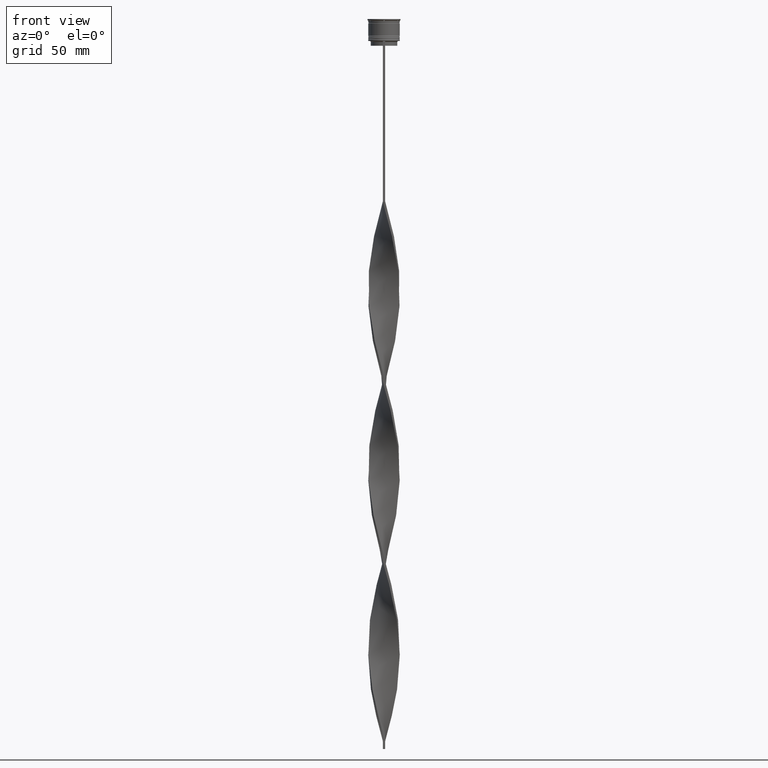
[diagram: clean part render]
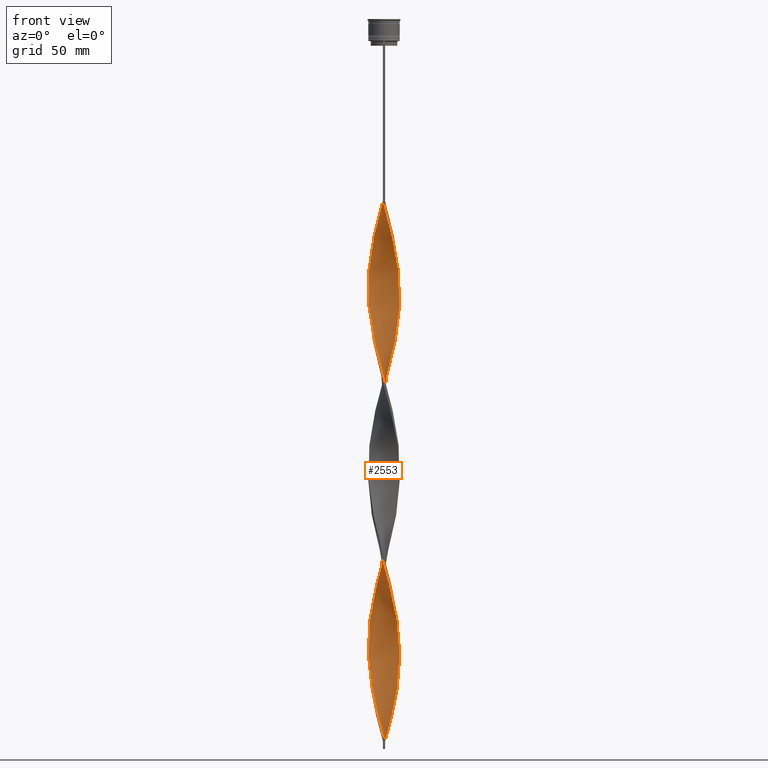
[diagram: same view with one face highlighted and labeled with its STEP entity id]
A machine part, front view. The second image highlights one B-rep face of the part: STEP entity #2553.
In plain terms, the highlighted face is a freeform B-spline surface patch.
Its self-contained STEP definition (entity closure, byte-faithful):
#9 = CARTESIAN_POINT ( 'NONE',  ( 5.464672468518296355, -8.438854389437556947, -248.5227272727272521 ) ) ;
#10 = CARTESIAN_POINT ( 'NONE',  ( 7.620814860596667906, 6.557445345164573780, -201.7499999999999716 ) ) ;
#25 = CARTESIAN_POINT ( 'NONE',  ( -8.784758693793767392, -4.836374126534751738, -188.7575757575757507 ) ) ;
#26 = CARTESIAN_POINT ( 'NONE',  ( 9.791478290104368654, -2.165514464143551088, -167.9696969696969973 ) ) ;
#28 = CARTESIAN_POINT ( 'NONE',  ( 6.037348324179366621, 8.007054715220117913, -438.2121212121212466 ) ) ;
#38 = CARTESIAN_POINT ( 'NONE',  ( 3.471926133502977407, -9.407881213296604983, -131.5909090909090935 ) ) ;
#50 = CARTESIAN_POINT ( 'NONE',  ( -10.00495054751428725, 0.6807823013221516728, -167.9696969696969973 ) ) ;
#53 = CARTESIAN_POINT ( 'NONE',  ( 8.007054715220117913, -6.037348324179365733, -381.0454545454545610 ) ) ;
#59 = CARTESIAN_POINT ( 'NONE',  ( 9.407881213296604983, 3.471926133502976519, -188.7575757575757507 ) ) ;
#72 = CARTESIAN_POINT ( 'NONE',  ( -10.05364105866910052, 0.03478588441202685316, -290.0984848484848726 ) ) ;
#75 = CARTESIAN_POINT ( 'NONE',  ( -7.115419520218543070, 7.066350193083617448, -141.9848484848484986 ) ) ;
#91 = CARTESIAN_POINT ( 'NONE',  ( -9.636597638877821836, -2.865814812699130520, -180.9621212121212182 ) ) ;
#92 = CARTESIAN_POINT ( 'NONE',  ( -9.656198271192611315, -2.799061189350517065, -300.4924242424242493 ) ) ;
#94 = CARTESIAN_POINT ( 'NONE',  ( -2.799061189350513512, -9.656198271192605986, -217.3409090909090651 ) ) ;
#121 = CARTESIAN_POINT ( 'NONE',  ( 8.007054715220116137, 6.037348324179355963, -308.2878787878788103 ) ) ;
#124 = CARTESIAN_POINT ( 'NONE',  ( -9.956260036359488197, -1.396350487056335687, -295.2954545454545041 ) ) ;
#126 = CARTESIAN_POINT ( 'NONE',  ( -3.471926133502973855, -9.407881213296597878, -214.7424242424242209 ) ) ;
#146 = CARTESIAN_POINT ( 'NONE',  ( 6.557445345164570227, 7.620814860596660800, -316.0833333333332575 ) ) ;
#147 = CARTESIAN_POINT ( 'NONE',  ( 0.7500000000000011102, 10.00000000000000533, -230.3333333333333428 ) ) ;
#149 = CARTESIAN_POINT ( 'NONE',  ( 4.208075784551209786, -9.130662998149976062, -243.3257575757575637 ) ) ;
#158 = CARTESIAN_POINT ( 'NONE',  ( -9.946358941330910142, 1.465214115587967214, -284.9015151515151842 ) ) ;
#168 = CARTESIAN_POINT ( 'NONE',  ( -7.620814860596662577, 6.557445345164569339, -373.2499999999999432 ) ) ;
#169 = CARTESIAN_POINT ( 'NONE',  ( -5.464672468518302573, -8.438854389437560499, -326.4772727272727479 ) ) ;
#171 = CARTESIAN_POINT ( 'NONE',  ( 4.144791077655439970, 9.159564155400586216, -326.4772727272727479 ) ) ;
#181 = CARTESIAN_POINT ( 'NONE',  ( -0.7499999999999997780, -10.00000000000000533, -344.6666666666666856 ) ) ;
#194 = CARTESIAN_POINT ( 'NONE',  ( -8.048641294001546598, 5.981795158687156722, -375.8484848484848726 ) ) ;
#200 = CARTESIAN_POINT ( 'NONE',  ( 9.946358941330903036, 1.465214115587971877, -290.0984848484849294 ) ) ;
#211 = ORIENTED_EDGE ( 'NONE', *, *, #1219, .T. ) ;
#213 = CARTESIAN_POINT ( 'NONE',  ( 4.775468024932592925, -8.818015941403515967, -365.4545454545454959 ) ) ;
#224 = CARTESIAN_POINT ( 'NONE',  ( 0.7499999999999985567, -9.999999999999998224, -459.0000000000000000 ) ) ;
#236 = CARTESIAN_POINT ( 'NONE',  ( -1.396350487056331913, 9.956260036359488197, -238.1287878787878469 ) ) ;
#257 = CARTESIAN_POINT ( 'NONE',  ( -3.471926133502978296, 9.407881213296603207, -245.9242424242424363 ) ) ;
#266 = CARTESIAN_POINT ( 'NONE',  ( 9.407881213296604983, 3.471926133502976075, -417.4242424242424363 ) ) ;
#282 = CARTESIAN_POINT ( 'NONE',  ( -10.00495054751428725, 0.6807823013221516728, -167.9696969696969973 ) ) ;
#291 = CARTESIAN_POINT ( 'NONE',  ( 7.575255041002671774, -6.610024179840428005, -378.4469696969697452 ) ) ;
#293 = CARTESIAN_POINT ( 'NONE',  ( -0.6807823013221521169, -10.00495054751428725, -453.8030303030303116 ) ) ;
#300 = LINE ( 'NONE', #3032, #1770 ) ;
#303 = CARTESIAN_POINT ( 'NONE',  ( -8.818015941403507085, 4.775468024932590261, -152.3787878787879038 ) ) ;
#318 = CARTESIAN_POINT ( 'NONE',  ( 9.383630318513906943, -3.536945298625172374, -162.7727272727272805 ) ) ;
#322 = CARTESIAN_POINT ( 'NONE',  ( -9.806229153776044427, 2.097705838203424378, -162.7727272727272805 ) ) ;
#336 = CARTESIAN_POINT ( 'NONE',  ( 2.799061189350517065, -9.656198271192611315, -128.9924242424242209 ) ) ;
#357 = CARTESIAN_POINT ( 'NONE',  ( 4.208075784551208898, -9.130662998149976062, -243.3257575757575637 ) ) ;
#358 = CARTESIAN_POINT ( 'NONE',  ( 8.818015941403514191, 4.775468024932592925, -193.9545454545454675 ) ) ;
#373 = CARTESIAN_POINT ( 'NONE',  ( -0.6807823013221521169, -10.00495054751428725, -225.1363636363636260 ) ) ;
#383 = CARTESIAN_POINT ( 'NONE',  ( 9.946358941330910142, -1.465214115587970545, -170.5681818181818414 ) ) ;
#392 = CARTESIAN_POINT ( 'NONE',  ( -6.037348324179360404, 8.007054715220112584, -136.7878787878787818 ) ) ;
#395 = CARTESIAN_POINT ( 'NONE',  ( 9.159564155400593322, 4.144791077655439970, -420.0227272727271952 ) ) ;
#406 = CARTESIAN_POINT ( 'NONE',  ( 9.956260036359488197, 1.396350487056335243, -180.9621212121212182 ) ) ;
#421 = CARTESIAN_POINT ( 'NONE',  ( -3.471926133502973855, -9.407881213296597878, -214.7424242424242209 ) ) ;
#422 = CARTESIAN_POINT ( 'NONE',  ( -2.165514464143553308, -9.791478290104366877, -339.4696969696969973 ) ) ;
#425 = CARTESIAN_POINT ( 'NONE',  ( 7.066350193083622777, -7.115419520218548399, -375.8484848484848726 ) ) ;
#431 = CARTESIAN_POINT ( 'NONE',  ( 7.620814860596668794, 6.557445345164573780, -201.7500000000000000 ) ) ;
#441 = CARTESIAN_POINT ( 'NONE',  ( -9.656198271192604210, 2.799061189350515289, -160.1742424242424363 ) ) ;
#442 = CARTESIAN_POINT ( 'NONE',  ( -9.407881213296606759, -3.471926133502973411, -303.0909090909091219 ) ) ;
#444 = CARTESIAN_POINT ( 'NONE',  ( 5.981795158687153169, 8.048641294001546598, -318.6818181818181870 ) ) ;
#452 = CARTESIAN_POINT ( 'NONE',  ( 2.799061189350517065, -9.656198271192611315, -128.9924242424241925 ) ) ;
#460 = CARTESIAN_POINT ( 'NONE',  ( -9.956260036359481091, 1.396350487056332579, -394.0378787878787534 ) ) ;
#461 = CARTESIAN_POINT ( 'NONE',  ( -8.784758693793774498, 4.836374126534755291, -271.9090909090909349 ) ) ;
#463 = CARTESIAN_POINT ( 'NONE',  ( 0.6807823013221536712, 10.00495054751428903, -339.4696969696969973 ) ) ;
#484 = CARTESIAN_POINT ( 'NONE',  ( -8.438854389437555170, -5.464672468518296355, -420.0227272727271952 ) ) ;
#487 = CARTESIAN_POINT ( 'NONE',  ( -9.791478290104366877, 2.165514464143552420, -282.3030303030303116 ) ) ;
#489 = CARTESIAN_POINT ( 'NONE',  ( 9.791478290104363325, 2.165514464143547535, -292.6969696969697452 ) ) ;
#497 = CARTESIAN_POINT ( 'NONE',  ( -7.620814860596669682, -6.557445345164572004, -316.0833333333332575 ) ) ;
#505 = CARTESIAN_POINT ( 'NONE',  ( -3.536945298625169265, 9.383630318513899837, -355.0606060606060623 ) ) ;
#506 = CARTESIAN_POINT ( 'NONE',  ( -9.383630318513906943, 3.536945298625171930, -277.1060606060606233 ) ) ;
#508 = CARTESIAN_POINT ( 'NONE',  ( 8.784758693793769169, 4.836374126534749074, -303.0909090909091219 ) ) ;
#519 = CARTESIAN_POINT ( 'NONE',  ( -9.806229153776051533, -2.097705838203422157, -297.8939393939394336 ) ) ;
#530 = CARTESIAN_POINT ( 'NONE',  ( -6.037348324179360404, 8.007054715220112584, -365.4545454545454959 ) ) ;
#533 = CARTESIAN_POINT ( 'NONE',  ( 9.806229153776044427, -2.097705838203424378, -277.1060606060606233 ) ) ;
#545 = CARTESIAN_POINT ( 'NONE',  ( 4.836374126534754403, 8.784758693793774498, -214.7424242424242209 ) ) ;
#558 = CARTESIAN_POINT ( 'NONE',  ( 5.981795158687153169, 8.048641294001546598, -318.6818181818181870 ) ) ;
#560 = CARTESIAN_POINT ( 'NONE',  ( 9.383630318513906943, -3.536945298625172374, -391.4393939393939945 ) ) ;
#563 = CARTESIAN_POINT ( 'NONE',  ( -8.438854389437555170, -5.464672468518296355, -420.0227272727271952 ) ) ;
#575 = CARTESIAN_POINT ( 'NONE',  ( -7.575255041002670886, 6.610024179840430669, -264.1136363636363171 ) ) ;
#595 = CARTESIAN_POINT ( 'NONE',  ( -0.6807823013221504516, 10.00495054751429613, -235.5303030303030312 ) ) ;
#607 = CARTESIAN_POINT ( 'NONE',  ( -2.799061189350513512, -9.656198271192605986, -446.0075757575756938 ) ) ;
#619 = CARTESIAN_POINT ( 'NONE',  ( -8.048641294001546598, 5.981795158687156722, -147.1818181818181870 ) ) ;
#629 = CARTESIAN_POINT ( 'NONE',  ( 9.956260036359488197, 1.396350487056335021, -409.6287878787878185 ) ) ;
#631 = CARTESIAN_POINT ( 'NONE',  ( -8.818015941403507085, 4.775468024932590261, -381.0454545454545610 ) ) ;
#647 = CARTESIAN_POINT ( 'NONE',  ( 9.407881213296604983, 3.471926133502976519, -417.4242424242424363 ) ) ;
#657 = CARTESIAN_POINT ( 'NONE',  ( -2.097705838203423490, -9.806229153776044427, -448.6060606060606233 ) ) ;
#664 = CARTESIAN_POINT ( 'NONE',  ( -9.383630318513899837, -3.536945298625169265, -183.5606060606060908 ) ) ;
#698 = CARTESIAN_POINT ( 'NONE',  ( -9.999999999999998224, -0.7499999999999991118, -173.1666666666666856 ) ) ;
#699 = CARTESIAN_POINT ( 'NONE',  ( 5.406144972209745880, -8.476467727406435060, -139.3863636363636260 ) ) ;
#717 = CARTESIAN_POINT ( 'NONE',  ( 0.7499999999999985567, -9.999999999999998224, -230.3333333333333428 ) ) ;
#736 = CARTESIAN_POINT ( 'NONE',  ( -4.836374126534752627, 8.784758693793767392, -131.5909090909090935 ) ) ;
#739 = CARTESIAN_POINT ( 'NONE',  ( 8.048641294001550150, 5.981795158687160274, -427.8181818181818130 ) ) ;
#757 = CARTESIAN_POINT ( 'NONE',  ( -4.775468024932591149, -8.818015941403507085, -209.5454545454545610 ) ) ;
#758 = CARTESIAN_POINT ( 'NONE',  ( -0.7499999999999998890, -10.00000000000000533, -344.6666666666666856 ) ) ;
#760 = CARTESIAN_POINT ( 'NONE',  ( 9.636597638877828942, -2.865814812699130965, -394.0378787878788103 ) ) ;
#782 = CARTESIAN_POINT ( 'NONE',  ( -7.575255041002665557, -6.610024179840424452, -196.5530303030303116 ) ) ;
#783 = CARTESIAN_POINT ( 'NONE',  ( 3.471926133502976963, -9.407881213296604983, -360.2575757575757507 ) ) ;
#785 = CARTESIAN_POINT ( 'NONE',  ( 7.620814860596662577, -6.557445345164570227, -258.9166666666666288 ) ) ;
#793 = CARTESIAN_POINT ( 'NONE',  ( 7.575255041002672662, -6.610024179840428893, -149.7803030303030596 ) ) ;
#803 = CARTESIAN_POINT ( 'NONE',  ( 4.775468024932587596, 8.818015941403508862, -323.8787878787878753 ) ) ;
#804 = CARTESIAN_POINT ( 'NONE',  ( -9.806229153776051533, -2.097705838203422157, -297.8939393939394336 ) ) ;
#806 = CARTESIAN_POINT ( 'NONE',  ( 2.097705838203424378, 9.806229153776044427, -334.2727272727272521 ) ) ;
#824 = CARTESIAN_POINT ( 'NONE',  ( -8.784758693793767392, -4.836374126534751738, -417.4242424242424363 ) ) ;
#825 = CARTESIAN_POINT ( 'NONE',  ( -5.406144972209745880, 8.476467727406435060, -253.7196969696969973 ) ) ;
#828 = CARTESIAN_POINT ( 'NONE',  ( -3.536945298625169265, 9.383630318513899837, -355.0606060606060623 ) ) ;
#835 = CARTESIAN_POINT ( 'NONE',  ( -9.159564155400593322, -4.144791077655439082, -305.6893939393939945 ) ) ;
#846 = CARTESIAN_POINT ( 'NONE',  ( 4.144791077655439082, 9.159564155400586216, -326.4772727272727479 ) ) ;
#848 = CARTESIAN_POINT ( 'NONE',  ( 6.037348324179366621, 8.007054715220117913, -209.5454545454545610 ) ) ;
#850 = CARTESIAN_POINT ( 'NONE',  ( 4.836374126534753515, -8.784758693793767392, -245.9242424242424363 ) ) ;
#860 = CARTESIAN_POINT ( 'NONE',  ( -5.464672468518301685, -8.438854389437560499, -326.4772727272727479 ) ) ;
#868 = CARTESIAN_POINT ( 'NONE',  ( 8.438854389437556947, 5.464672468518295467, -305.6893939393939945 ) ) ;
#869 = CARTESIAN_POINT ( 'NONE',  ( 8.007054715220117913, -6.037348324179365733, -381.0454545454545610 ) ) ;
#871 = CARTESIAN_POINT ( 'NONE',  ( 2.865814812699127856, -9.636597638877821836, -238.1287878787878469 ) ) ;
#880 = CARTESIAN_POINT ( 'NONE',  ( -10.00000000000000533, 0.7500000000000016653, -287.5000000000000568 ) ) ;
#893 = CARTESIAN_POINT ( 'NONE',  ( 9.383630318513901614, 3.536945298625165712, -297.8939393939394336 ) ) ;
#905 = CARTESIAN_POINT ( 'NONE',  ( 6.557445345164574668, -7.620814860596668794, -373.2499999999999432 ) ) ;
#934 = CARTESIAN_POINT ( 'NONE',  ( -5.406144972209745880, 8.476467727406435060, -253.7196969696969973 ) ) ;
#955 = CARTESIAN_POINT ( 'NONE',  ( -9.159564155400587993, 4.144791077655436418, -154.9772727272727195 ) ) ;
#963 = CARTESIAN_POINT ( 'NONE',  ( 8.818015941403514191, 4.775468024932592925, -422.6212121212121247 ) ) ;
#965 = CARTESIAN_POINT ( 'NONE',  ( -8.048641294001546598, 5.981795158687156722, -375.8484848484848726 ) ) ;
#972 = CARTESIAN_POINT ( 'NONE',  ( 10.00000000000000533, -0.7500000000000004441, -401.8333333333333144 ) ) ;
#984 = CARTESIAN_POINT ( 'NONE',  ( -6.610024179840423564, 7.575255041002665557, -368.0530303030302548 ) ) ;
#997 = CARTESIAN_POINT ( 'NONE',  ( 8.476467727406435060, 5.406144972209746768, -425.2196969696969404 ) ) ;
#1006 = CARTESIAN_POINT ( 'NONE',  ( -0.6807823013221521169, -10.00495054751428725, -453.8030303030303116 ) ) ;
#1028 = CARTESIAN_POINT ( 'NONE',  ( 2.165514464143548423, -9.791478290104363325, -235.5303030303030312 ) ) ;
#1029 = CARTESIAN_POINT ( 'NONE',  ( 3.471926133502976963, -9.407881213296604983, -131.5909090909090935 ) ) ;
#1039 = CARTESIAN_POINT ( 'NONE',  ( 0.7500000000000011102, 10.00000000000000533, -459.0000000000000000 ) ) ;
#1047 = CARTESIAN_POINT ( 'NONE',  ( 6.610024179840422676, -7.575255041002665557, -253.7196969696969973 ) ) ;
#1048 = CARTESIAN_POINT ( 'NONE',  ( 7.115419520218548399, 7.066350193083621889, -204.3484848484848726 ) ) ;
#1067 = CARTESIAN_POINT ( 'NONE',  ( 8.476467727406427954, -5.406144972209744104, -264.1136363636363171 ) ) ;
#1071 = CARTESIAN_POINT ( 'NONE',  ( 7.115419520218548399, 7.066350193083621889, -433.0151515151515014 ) ) ;
#1078 = CARTESIAN_POINT ( 'NONE',  ( 8.476467727406435060, 5.406144972209746768, -196.5530303030303116 ) ) ;
#1088 = CARTESIAN_POINT ( 'NONE',  ( -5.406144972209744104, -8.476467727406427954, -206.9469696969697168 ) ) ;
#1089 = CARTESIAN_POINT ( 'NONE',  ( 1.396350487056334577, -9.956260036359488197, -123.7954545454545467 ) ) ;
#1091 = CARTESIAN_POINT ( 'NONE',  ( 4.836374126534754403, 8.784758693793774498, -443.4090909090909349 ) ) ;
#1107 = CARTESIAN_POINT ( 'NONE',  ( -1.465214115587969879, 9.946358941330901260, -118.5984848484848442 ) ) ;
#1108 = CARTESIAN_POINT ( 'NONE',  ( 0.03478588441203076670, 10.05364105866910052, -232.9318181818181870 ) ) ;
#1110 = CARTESIAN_POINT ( 'NONE',  ( 10.05364105866909341, 0.03478588441203249448, -284.9015151515151842 ) ) ;
#1135 = CARTESIAN_POINT ( 'NONE',  ( -5.464672468518295467, 8.438854389437556947, -362.8560606060606233 ) ) ;
#1136 = CARTESIAN_POINT ( 'NONE',  ( 4.208075784551209786, 9.130662998149983167, -217.3409090909090651 ) ) ;
#1138 = CARTESIAN_POINT ( 'NONE',  ( 3.536945298625166156, -9.383630318513901614, -240.7272727272727479 ) ) ;
#1156 = CARTESIAN_POINT ( 'NONE',  ( -9.383630318513899837, -3.536945298625169265, -412.2272727272727479 ) ) ;
#1157 = CARTESIAN_POINT ( 'NONE',  ( 2.165514464143551976, 9.791478290104366877, -225.1363636363636260 ) ) ;
#1159 = CARTESIAN_POINT ( 'NONE',  ( 4.775468024932587596, 8.818015941403508862, -323.8787878787878753 ) ) ;
#1177 = CARTESIAN_POINT ( 'NONE',  ( -5.406144972209744104, -8.476467727406427954, -435.6136363636363171 ) ) ;
#1178 = CARTESIAN_POINT ( 'NONE',  ( 0.6807823013221528941, -10.00495054751429436, -349.8636363636363740 ) ) ;
#1180 = CARTESIAN_POINT ( 'NONE',  ( -1.465214115587969879, 9.946358941330903036, -347.2651515151514445 ) ) ;
#1191 = CARTESIAN_POINT ( 'NONE',  ( -7.115419520218546623, -7.066350193083624553, -318.6818181818181870 ) ) ;
#1203 = CARTESIAN_POINT ( 'NONE',  ( 8.784758693793769169, 4.836374126534749074, -303.0909090909091219 ) ) ;
#1206 = CARTESIAN_POINT ( 'NONE',  ( -6.610024179840430669, -7.575255041002668221, -321.2803030303030027 ) ) ;
#1208 = CARTESIAN_POINT ( 'NONE',  ( 8.476467727406427954, -5.406144972209744104, -264.1136363636363171 ) ) ;
#1218 = CARTESIAN_POINT ( 'NONE',  ( 2.799061189350517065, -9.656198271192611315, -357.6590909090909918 ) ) ;
#1219 = EDGE_CURVE ( 'NONE', #1975, #3659, #2881, .T. ) ;
#1226 = CARTESIAN_POINT ( 'NONE',  ( 9.656198271192604210, -2.799061189350517953, -274.5075757575757507 ) ) ;
#1228 = CARTESIAN_POINT ( 'NONE',  ( 9.806229153776049756, 2.097705838203425266, -412.2272727272727479 ) ) ;
#1240 = CARTESIAN_POINT ( 'NONE',  ( -8.476467727406435060, -5.406144972209745880, -310.8863636363635692 ) ) ;
#1249 = CARTESIAN_POINT ( 'NONE',  ( 7.115419520218548399, 7.066350193083621889, -433.0151515151515014 ) ) ;
#1261 = CARTESIAN_POINT ( 'NONE',  ( -7.066350193083621889, 7.115419520218548399, -261.5151515151515582 ) ) ;
#1272 = CARTESIAN_POINT ( 'NONE',  ( 9.130662998149981391, -4.208075784551211562, -388.8409090909090651 ) ) ;
#1289 = CARTESIAN_POINT ( 'NONE',  ( -9.636597638877828942, 2.865814812699136738, -279.7045454545453822 ) ) ;
#1298 = CARTESIAN_POINT ( 'NONE',  ( -9.407881213296597878, 3.471926133502974743, -386.2424242424242493 ) ) ;
#1307 = CARTESIAN_POINT ( 'NONE',  ( -9.636597638877821836, -2.865814812699130520, -180.9621212121212182 ) ) ;
#1316 = CARTESIAN_POINT ( 'NONE',  ( 0.7500000000000011102, 10.00000000000000533, -459.0000000000000000 ) ) ;
#1318 = CARTESIAN_POINT ( 'NONE',  ( -7.575255041002665557, -6.610024179840425340, -425.2196969696969404 ) ) ;
#1325 = DIRECTION ( 'NONE',  ( 0.000000000000000000, 1.000000000000000000, 0.000000000000000000 ) ) ;
#1328 = CARTESIAN_POINT ( 'NONE',  ( 2.165514464143551976, 9.791478290104368654, -453.8030303030303116 ) ) ;
#1370 = CARTESIAN_POINT ( 'NONE',  ( 9.946358941330908365, -1.465214115587970767, -170.5681818181818414 ) ) ;
#1385 = CARTESIAN_POINT ( 'NONE',  ( -7.066350193083618336, -7.115419520218543070, -199.1515151515151558 ) ) ;
#1386 = CARTESIAN_POINT ( 'NONE',  ( 0.7500000000000011102, 10.00000000000000533, -459.0000000000000000 ) ) ;
#1404 = CARTESIAN_POINT ( 'NONE',  ( -2.097705838203423490, -9.806229153776044427, -219.9393939393939377 ) ) ;
#1409 = CARTESIAN_POINT ( 'NONE',  ( -10.05364105866909341, -0.03478588441202934423, -170.5681818181818414 ) ) ;
#1421 = CARTESIAN_POINT ( 'NONE',  ( 10.00000000000000533, -0.7500000000000004441, -173.1666666666666856 ) ) ;
#1424 = CARTESIAN_POINT ( 'NONE',  ( 0.7499999999999985567, -9.999999999999998224, -459.0000000000000000 ) ) ;
#1429 = CARTESIAN_POINT ( 'NONE',  ( -2.865814812699130076, 9.636597638877821836, -123.7954545454545467 ) ) ;
#1432 = CARTESIAN_POINT ( 'NONE',  ( 8.818015941403514191, 4.775468024932592925, -422.6212121212121247 ) ) ;
#1446 = CARTESIAN_POINT ( 'NONE',  ( -8.007054715220110808, -6.037348324179360404, -193.9545454545454675 ) ) ;
#1448 = CARTESIAN_POINT ( 'NONE',  ( -3.536945298625172374, -9.383630318513906943, -334.2727272727272521 ) ) ;
#1450 = CARTESIAN_POINT ( 'NONE',  ( -7.620814860596663465, 6.557445345164569339, -144.5833333333333428 ) ) ;
#1453 = EDGE_CURVE ( 'NONE', #1906, #3659, #2697, .T. ) ;
#1466 = CARTESIAN_POINT ( 'NONE',  ( -8.476467727406427954, 5.406144972209743216, -378.4469696969697452 ) ) ;
#1467 = CARTESIAN_POINT ( 'NONE',  ( -8.438854389437560499, 5.464672468518302573, -269.3106060606060623 ) ) ;
#1469 = CARTESIAN_POINT ( 'NONE',  ( -0.6807823013221521169, -10.00495054751428725, -225.1363636363636260 ) ) ;
#1484 = CARTESIAN_POINT ( 'NONE',  ( -0.03478588441202901810, -10.05364105866910052, -118.5984848484848442 ) ) ;
#1495 = CARTESIAN_POINT ( 'NONE',  ( -9.999999999999998224, -0.7499999999999991118, -401.8333333333333144 ) ) ;
#1496 = CARTESIAN_POINT ( 'NONE',  ( 2.865814812699131853, 9.636597638877828942, -222.5378787878787534 ) ) ;
#1498 = CARTESIAN_POINT ( 'NONE',  ( 9.159564155400586216, -4.144791077655439970, -269.3106060606060623 ) ) ;
#1507 = CARTESIAN_POINT ( 'NONE',  ( 1.396350487056334799, -9.956260036359488197, -123.7954545454545325 ) ) ;
#1516 = CARTESIAN_POINT ( 'NONE',  ( -6.557445345164569339, -7.620814860596661688, -430.4166666666666856 ) ) ;
#1517 = CARTESIAN_POINT ( 'NONE',  ( -8.007054715220117913, 6.037348324179363068, -266.7121212121212466 ) ) ;
#1519 = CARTESIAN_POINT ( 'NONE',  ( -0.7499999999999997780, 9.999999999999998224, -344.6666666666666856 ) ) ;
#1527 = CARTESIAN_POINT ( 'NONE',  ( 4.208075784551210674, 9.130662998149984944, -217.3409090909090651 ) ) ;
#1536 = CARTESIAN_POINT ( 'NONE',  ( -7.066350193083618336, -7.115419520218543070, -427.8181818181818130 ) ) ;
#1537 = CARTESIAN_POINT ( 'NONE',  ( -5.981795158687159386, 8.048641294001550150, -256.3181818181818130 ) ) ;
#1539 = CARTESIAN_POINT ( 'NONE',  ( 2.799061189350518841, 9.656198271192604210, -331.6742424242423795 ) ) ;
#1551 = CARTESIAN_POINT ( 'NONE',  ( 5.464672468518301685, 8.438854389437560499, -212.1439393939393767 ) ) ;
#1566 = CARTESIAN_POINT ( 'NONE',  ( 9.791478290104363325, 2.165514464143547535, -292.6969696969697452 ) ) ;
#1581 = CARTESIAN_POINT ( 'NONE',  ( 5.406144972209745880, -8.476467727406435060, -368.0530303030302548 ) ) ;
#1589 = CARTESIAN_POINT ( 'NONE',  ( -2.799061189350513512, -9.656198271192605986, -446.0075757575756938 ) ) ;
#1590 = EDGE_LOOP ( 'NONE', ( #2229, #211, #4215, #3116 ) ) ;
#1604 = CARTESIAN_POINT ( 'NONE',  ( -8.007054715220117913, 6.037348324179363068, -266.7121212121212466 ) ) ;
#1612 = VERTEX_POINT ( 'NONE', #2766 ) ;
#1613 = CARTESIAN_POINT ( 'NONE',  ( 1.465214115587971433, 9.946358941330908365, -456.4015151515151274 ) ) ;
#1627 = CARTESIAN_POINT ( 'NONE',  ( -2.097705838203422601, 9.806229153776051533, -240.7272727272727479 ) ) ;
#1637 = CARTESIAN_POINT ( 'NONE',  ( 6.037348324179366621, 8.007054715220117913, -438.2121212121212466 ) ) ;
#1650 = CARTESIAN_POINT ( 'NONE',  ( -9.946358941330903036, -1.465214115587968990, -175.7651515151515014 ) ) ;
#1660 = CARTESIAN_POINT ( 'NONE',  ( 5.464672468518301685, 8.438854389437560499, -440.8106060606060055 ) ) ;
#1662 = CARTESIAN_POINT ( 'NONE',  ( -3.471926133502973855, -9.407881213296597878, -443.4090909090909349 ) ) ;
#1670 = CARTESIAN_POINT ( 'NONE',  ( -8.007054715220110808, -6.037348324179360404, -193.9545454545454675 ) ) ;
#1677 = CARTESIAN_POINT ( 'NONE',  ( -4.775468024932591149, -8.818015941403507085, -438.2121212121212466 ) ) ;
#1685 = CARTESIAN_POINT ( 'NONE',  ( 9.636597638877828942, -2.865814812699130965, -165.3712121212121247 ) ) ;
#1690 = CARTESIAN_POINT ( 'NONE',  ( 9.656198271192611315, 2.799061189350516621, -414.8257575757575637 ) ) ;
#1711 = CARTESIAN_POINT ( 'NONE',  ( 9.130662998149981391, -4.208075784551211562, -160.1742424242424363 ) ) ;
#1726 = CARTESIAN_POINT ( 'NONE',  ( 4.836374126534753515, -8.784758693793767392, -245.9242424242424363 ) ) ;
#1727 = CARTESIAN_POINT ( 'NONE',  ( 8.476467727406435060, 5.406144972209746768, -196.5530303030303116 ) ) ;
#1743 = CARTESIAN_POINT ( 'NONE',  ( 7.115419520218543070, -7.066350193083619224, -256.3181818181818130 ) ) ;
#1744 = CARTESIAN_POINT ( 'NONE',  ( -0.7499999999999998890, -10.00000000000000533, -116.0000000000000000 ) ) ;
#1752 = CARTESIAN_POINT ( 'NONE',  ( 4.775468024932592925, -8.818015941403515967, -136.7878787878787818 ) ) ;
#1765 = CARTESIAN_POINT ( 'NONE',  ( -8.438854389437555170, -5.464672468518296355, -191.3560606060605949 ) ) ;
#1768 = CARTESIAN_POINT ( 'NONE',  ( 9.791478290104368654, -2.165514464143551088, -396.6363636363636260 ) ) ;
#1770 = VECTOR ( 'NONE', #1325, 1000.000000000000000 ) ;
#1787 = CARTESIAN_POINT ( 'NONE',  ( -6.557445345164569339, -7.620814860596661688, -201.7499999999999716 ) ) ;
#1788 = CARTESIAN_POINT ( 'NONE',  ( -4.144791077655439082, 9.159564155400593322, -248.5227272727272521 ) ) ;
#1790 = CARTESIAN_POINT ( 'NONE',  ( -3.536945298625169265, 9.383630318513899837, -126.3939393939393909 ) ) ;
#1796 = CARTESIAN_POINT ( 'NONE',  ( 7.115419520218548399, 7.066350193083621889, -204.3484848484848726 ) ) ;
#1805 = CARTESIAN_POINT ( 'NONE',  ( -3.536945298625169265, 9.383630318513899837, -126.3939393939393909 ) ) ;
#1806 = CARTESIAN_POINT ( 'NONE',  ( -6.037348324179363068, -8.007054715220117913, -323.8787878787878753 ) ) ;
#1809 = CARTESIAN_POINT ( 'NONE',  ( 8.818015941403510638, -4.775468024932587596, -266.7121212121212466 ) ) ;
#1816 = FACE_OUTER_BOUND ( 'NONE', #1590, .T. ) ;
#1826 = CARTESIAN_POINT ( 'NONE',  ( -10.00495054751428725, 0.6807823013221516728, -396.6363636363636260 ) ) ;
#1828 = CARTESIAN_POINT ( 'NONE',  ( -10.00000000000000533, 0.7500000000000017764, -287.5000000000000568 ) ) ;
#1829 = CARTESIAN_POINT ( 'NONE',  ( -0.03478588441203184223, 10.05364105866909341, -342.0681818181818699 ) ) ;
#1854 = CARTESIAN_POINT ( 'NONE',  ( -8.007054715220110808, -6.037348324179360404, -422.6212121212121247 ) ) ;
#1855 = CARTESIAN_POINT ( 'NONE',  ( -9.159564155400593322, -4.144791077655438194, -305.6893939393939945 ) ) ;
#1857 = CARTESIAN_POINT ( 'NONE',  ( -1.396350487056332801, -9.956260036359481091, -222.5378787878787250 ) ) ;
#1865 = CARTESIAN_POINT ( 'NONE',  ( 2.865814812699131853, 9.636597638877828942, -222.5378787878787250 ) ) ;
#1874 = CARTESIAN_POINT ( 'NONE',  ( -7.115419520218543070, 7.066350193083617448, -370.6515151515151842 ) ) ;
#1875 = CARTESIAN_POINT ( 'NONE',  ( -8.818015941403515967, -4.775468024932588484, -308.2878787878788103 ) ) ;
#1877 = CARTESIAN_POINT ( 'NONE',  ( -7.575255041002665557, -6.610024179840425340, -196.5530303030303116 ) ) ;
#1887 = CARTESIAN_POINT ( 'NONE',  ( -4.208075784551215115, -9.130662998149981391, -331.6742424242423795 ) ) ;
#1895 = CARTESIAN_POINT ( 'NONE',  ( 9.130662998149976062, 4.208075784551208010, -300.4924242424242493 ) ) ;
#1899 = CARTESIAN_POINT ( 'NONE',  ( -7.066350193083618336, -7.115419520218543070, -199.1515151515151558 ) ) ;
#1906 = VERTEX_POINT ( 'NONE', #1386 ) ;
#1911 = CARTESIAN_POINT ( 'NONE',  ( 3.471926133502977407, -9.407881213296604983, -360.2575757575757507 ) ) ;
#1923 = CARTESIAN_POINT ( 'NONE',  ( 2.097705838203424378, 9.806229153776044427, -334.2727272727272521 ) ) ;
#1937 = CARTESIAN_POINT ( 'NONE',  ( -1.465214115587968102, -9.946358941330910142, -342.0681818181818699 ) ) ;
#1945 = CARTESIAN_POINT ( 'NONE',  ( -4.144791077655437306, -9.159564155400586216, -440.8106060606060055 ) ) ;
#1959 = CARTESIAN_POINT ( 'NONE',  ( 2.165514464143551976, 9.791478290104368654, -225.1363636363636260 ) ) ;
#1966 = EDGE_CURVE ( 'NONE', #1612, #1906, #3354, .T. ) ;
#1967 = CARTESIAN_POINT ( 'NONE',  ( 8.438854389437562276, -5.464672468518299908, -383.6439393939393767 ) ) ;
#1975 = VERTEX_POINT ( 'NONE', #3934 ) ;
#1980 = CARTESIAN_POINT ( 'NONE',  ( -9.407881213296597878, 3.471926133502974743, -157.5757575757575921 ) ) ;
#1991 = CARTESIAN_POINT ( 'NONE',  ( 10.05364105866910052, -0.03478588441203001036, -404.4318181818181301 ) ) ;
#1995 = CARTESIAN_POINT ( 'NONE',  ( -1.396350487056332801, -9.956260036359481091, -451.2045454545454959 ) ) ;
#2005 = CARTESIAN_POINT ( 'NONE',  ( -2.165514464143550200, 9.791478290104361548, -121.1969696969697026 ) ) ;
#2013 = CARTESIAN_POINT ( 'NONE',  ( -1.396350487056333023, -9.956260036359481091, -451.2045454545454959 ) ) ;
#2016 = CARTESIAN_POINT ( 'NONE',  ( 0.03478588441202860176, -10.05364105866909341, -456.4015151515151274 ) ) ;
#2021 = CARTESIAN_POINT ( 'NONE',  ( 7.066350193083622777, -7.115419520218548399, -147.1818181818181870 ) ) ;
#2025 = CARTESIAN_POINT ( 'NONE',  ( 0.7500000000000009992, 10.00000000000000533, -459.0000000000000000 ) ) ;
#2041 = CARTESIAN_POINT ( 'NONE',  ( 8.784758693793772721, -4.836374126534756179, -157.5757575757575921 ) ) ;
#2060 = CARTESIAN_POINT ( 'NONE',  ( -4.208075784551208010, 9.130662998149976062, -128.9924242424242209 ) ) ;
#2063 = CARTESIAN_POINT ( 'NONE',  ( 9.159564155400593322, 4.144791077655439082, -191.3560606060605949 ) ) ;
#2082 = CARTESIAN_POINT ( 'NONE',  ( -6.610024179840422676, 7.575255041002665557, -139.3863636363636260 ) ) ;
#2084 = CARTESIAN_POINT ( 'NONE',  ( 9.806229153776049756, 2.097705838203425266, -183.5606060606060908 ) ) ;
#2093 = CARTESIAN_POINT ( 'NONE',  ( 8.438854389437562276, -5.464672468518299908, -154.9772727272727195 ) ) ;
#2105 = CARTESIAN_POINT ( 'NONE',  ( -4.836374126534752627, 8.784758693793767392, -131.5909090909090935 ) ) ;
#2114 = CARTESIAN_POINT ( 'NONE',  ( 8.784758693793772721, -4.836374126534756179, -157.5757575757575921 ) ) ;
#2126 = CARTESIAN_POINT ( 'NONE',  ( -8.476467727406427954, 5.406144972209743216, -149.7803030303030312 ) ) ;
#2127 = CARTESIAN_POINT ( 'NONE',  ( -0.03478588441202913606, -10.05364105866910052, -347.2651515151514445 ) ) ;
#2130 = CARTESIAN_POINT ( 'NONE',  ( 10.00495054751429613, 0.6807823013221513397, -407.0303030303030027 ) ) ;
#2140 = CARTESIAN_POINT ( 'NONE',  ( 10.00495054751429613, 0.6807823013221513397, -178.3636363636364024 ) ) ;
#2150 = CARTESIAN_POINT ( 'NONE',  ( -1.396350487056333023, -9.956260036359481091, -222.5378787878787534 ) ) ;
#2151 = CARTESIAN_POINT ( 'NONE',  ( -2.097705838203422601, 9.806229153776051533, -240.7272727272727479 ) ) ;
#2153 = CARTESIAN_POINT ( 'NONE',  ( 6.557445345164570227, 7.620814860596661688, -316.0833333333332575 ) ) ;
#2160 = CARTESIAN_POINT ( 'NONE',  ( 9.636597638877828942, -2.865814812699130965, -165.3712121212120962 ) ) ;
#2169 = CARTESIAN_POINT ( 'NONE',  ( 5.406144972209744992, 8.476467727406426178, -321.2803030303030027 ) ) ;
#2170 = CARTESIAN_POINT ( 'NONE',  ( -4.775468024932592925, 8.818015941403515967, -251.1212121212121247 ) ) ;
#2172 = CARTESIAN_POINT ( 'NONE',  ( 1.396350487056338796, 9.956260036359481091, -336.8712121212120110 ) ) ;
#2191 = CARTESIAN_POINT ( 'NONE',  ( -8.818015941403507085, 4.775468024932590261, -381.0454545454545610 ) ) ;
#2192 = CARTESIAN_POINT ( 'NONE',  ( -4.208075784551214227, -9.130662998149981391, -331.6742424242423795 ) ) ;
#2194 = CARTESIAN_POINT ( 'NONE',  ( -4.208075784551208898, 9.130662998149976062, -357.6590909090909918 ) ) ;
#2208 = CARTESIAN_POINT ( 'NONE',  ( -4.775468024932592925, 8.818015941403515967, -251.1212121212121247 ) ) ;
#2217 = CARTESIAN_POINT ( 'NONE',  ( -9.791478290104363325, -2.165514464143549311, -407.0303030303030027 ) ) ;
#2219 = CARTESIAN_POINT ( 'NONE',  ( 3.536945298625171041, 9.383630318513906943, -219.9393939393939377 ) ) ;
#2221 = CARTESIAN_POINT ( 'NONE',  ( -4.775468024932591149, -8.818015941403507085, -209.5454545454545610 ) ) ;
#2229 = ORIENTED_EDGE ( 'NONE', *, *, #3047, .T. ) ;
#2230 = CARTESIAN_POINT ( 'NONE',  ( -9.407881213296606759, -3.471926133502973411, -303.0909090909091219 ) ) ;
#2239 = CARTESIAN_POINT ( 'NONE',  ( 2.799061189350518397, 9.656198271192604210, -331.6742424242423795 ) ) ;
#2241 = CARTESIAN_POINT ( 'NONE',  ( 3.536945298625171041, 9.383630318513906943, -448.6060606060606233 ) ) ;
#2243 = CARTESIAN_POINT ( 'NONE',  ( 9.956260036359481091, -1.396350487056338352, -279.7045454545453822 ) ) ;
#2254 = CARTESIAN_POINT ( 'NONE',  ( -8.048641294001550150, -5.981795158687162051, -313.4848484848484986 ) ) ;
#2263 = CARTESIAN_POINT ( 'NONE',  ( 9.956260036359481091, -1.396350487056338130, -279.7045454545454390 ) ) ;
#2267 = CARTESIAN_POINT ( 'NONE',  ( -9.791478290104363325, -2.165514464143549311, -407.0303030303030027 ) ) ;
#2280 = CARTESIAN_POINT ( 'NONE',  ( -9.130662998149981391, 4.208075784551215115, -274.5075757575757507 ) ) ;
#2303 = CARTESIAN_POINT ( 'NONE',  ( 3.536945298625171041, 9.383630318513906943, -219.9393939393939377 ) ) ;
#2324 = CARTESIAN_POINT ( 'NONE',  ( -9.656198271192604210, 2.799061189350515289, -160.1742424242424647 ) ) ;
#2331 = CARTESIAN_POINT ( 'NONE',  ( 9.656198271192611315, 2.799061189350516621, -414.8257575757575637 ) ) ;
#2333 = CARTESIAN_POINT ( 'NONE',  ( -10.00495054751428725, 0.6807823013221516728, -396.6363636363636260 ) ) ;
#2344 = CARTESIAN_POINT ( 'NONE',  ( 3.536945298625171041, 9.383630318513906943, -448.6060606060606233 ) ) ;
#2360 = CARTESIAN_POINT ( 'NONE',  ( -6.557445345164569339, -7.620814860596662577, -430.4166666666666856 ) ) ;
#2370 = CARTESIAN_POINT ( 'NONE',  ( -0.7499999999999997780, 9.999999999999998224, -116.0000000000000000 ) ) ;
#2401 = CARTESIAN_POINT ( 'NONE',  ( -9.791478290104363325, -2.165514464143549311, -178.3636363636364024 ) ) ;
#2402 = CARTESIAN_POINT ( 'NONE',  ( 9.656198271192611315, 2.799061189350516621, -186.1590909090908781 ) ) ;
#2421 = CARTESIAN_POINT ( 'NONE',  ( -7.115419520218543070, 7.066350193083617448, -141.9848484848484986 ) ) ;
#2441 = CARTESIAN_POINT ( 'NONE',  ( 8.818015941403510638, -4.775468024932587596, -266.7121212121212466 ) ) ;
#2445 = CARTESIAN_POINT ( 'NONE',  ( 9.130662998149983167, -4.208075784551211562, -388.8409090909090651 ) ) ;
#2461 = CARTESIAN_POINT ( 'NONE',  ( -7.620814860596662577, 6.557445345164569339, -144.5833333333333428 ) ) ;
#2462 = CARTESIAN_POINT ( 'NONE',  ( 4.144791077655438194, -9.159564155400593322, -134.1893939393939377 ) ) ;
#2464 = CARTESIAN_POINT ( 'NONE',  ( 4.208075784551210674, 9.130662998149984944, -446.0075757575756938 ) ) ;
#2470 = CARTESIAN_POINT ( 'NONE',  ( 8.048641294001550150, 5.981795158687160274, -199.1515151515151558 ) ) ;
#2474 = CARTESIAN_POINT ( 'NONE',  ( 0.7500000000000002220, 3.333333333333337478, -459.0000000000000000 ) ) ;
#2481 = CARTESIAN_POINT ( 'NONE',  ( -8.048641294001546598, 5.981795158687156722, -147.1818181818181870 ) ) ;
#2482 = CARTESIAN_POINT ( 'NONE',  ( -1.396350487056331913, 9.956260036359488197, -238.1287878787878469 ) ) ;
#2485 = CARTESIAN_POINT ( 'NONE',  ( 8.007054715220116137, 6.037348324179355963, -308.2878787878788103 ) ) ;
#2497 = CARTESIAN_POINT ( 'NONE',  ( 2.097705838203425266, -9.806229153776049756, -126.3939393939393909 ) ) ;
#2507 = CARTESIAN_POINT ( 'NONE',  ( -6.610024179840422676, 7.575255041002665557, -368.0530303030302548 ) ) ;
#2508 = CARTESIAN_POINT ( 'NONE',  ( -0.6807823013221503405, 10.00495054751429613, -235.5303030303030312 ) ) ;
#2510 = CARTESIAN_POINT ( 'NONE',  ( 5.406144972209744992, 8.476467727406426178, -321.2803030303030596 ) ) ;
#2517 = CARTESIAN_POINT ( 'NONE',  ( 9.130662998149983167, -4.208075784551211562, -160.1742424242424647 ) ) ;
#2528 = CARTESIAN_POINT ( 'NONE',  ( -9.130662998149976062, -4.208075784551207121, -414.8257575757575637 ) ) ;
#2529 = CARTESIAN_POINT ( 'NONE',  ( -7.575255041002669998, 6.610024179840429781, -264.1136363636363171 ) ) ;
#2531 = CARTESIAN_POINT ( 'NONE',  ( 6.037348324179360404, -8.007054715220112584, -251.1212121212121247 ) ) ;
#2537 = CARTESIAN_POINT ( 'NONE',  ( 5.406144972209745880, -8.476467727406435060, -139.3863636363635976 ) ) ;
#2547 = CARTESIAN_POINT ( 'NONE',  ( 9.407881213296597878, -3.471926133502974743, -271.9090909090909349 ) ) ;
#2549 = CARTESIAN_POINT ( 'NONE',  ( 1.396350487056334577, -9.956260036359488197, -352.4621212121211897 ) ) ;
#2551 = CARTESIAN_POINT ( 'NONE',  ( 9.130662998149976062, 4.208075784551208898, -300.4924242424241925 ) ) ;
#2553 = ADVANCED_FACE ( 'NONE', ( #1816 ), #3793, .T. ) ;
#2564 = CARTESIAN_POINT ( 'NONE',  ( -6.610024179840431557, -7.575255041002669110, -321.2803030303030596 ) ) ;
#2572 = CARTESIAN_POINT ( 'NONE',  ( -0.7499999999999997780, 9.999999999999998224, -344.6666666666666856 ) ) ;
#2573 = CARTESIAN_POINT ( 'NONE',  ( -1.465214115587968102, -9.946358941330908365, -342.0681818181818130 ) ) ;
#2575 = CARTESIAN_POINT ( 'NONE',  ( 9.407881213296597878, -3.471926133502974743, -271.9090909090909349 ) ) ;
#2588 = CARTESIAN_POINT ( 'NONE',  ( 0.03478588441203066262, 10.05364105866910052, -232.9318181818181870 ) ) ;
#2596 = CARTESIAN_POINT ( 'NONE',  ( 10.05364105866909341, 0.03478588441203249448, -284.9015151515151842 ) ) ;
#2599 = CARTESIAN_POINT ( 'NONE',  ( -9.999999999999998224, -0.7499999999999991118, -401.8333333333333144 ) ) ;
#2609 = CARTESIAN_POINT ( 'NONE',  ( 5.981795158687160274, -8.048641294001550150, -370.6515151515151842 ) ) ;
#2618 = CARTESIAN_POINT ( 'NONE',  ( 9.159564155400593322, 4.144791077655439082, -420.0227272727271952 ) ) ;
#2635 = CARTESIAN_POINT ( 'NONE',  ( -6.037348324179363068, -8.007054715220117913, -323.8787878787878753 ) ) ;
#2646 = CARTESIAN_POINT ( 'NONE',  ( 8.476467727406435060, 5.406144972209746768, -425.2196969696969404 ) ) ;
#2648 = CARTESIAN_POINT ( 'NONE',  ( -9.946358941330903036, -1.465214115587968990, -404.4318181818180733 ) ) ;
#2659 = CARTESIAN_POINT ( 'NONE',  ( -9.656198271192611315, -2.799061189350517065, -300.4924242424241925 ) ) ;
#2667 = CARTESIAN_POINT ( 'NONE',  ( 10.00495054751429613, 0.6807823013221512287, -407.0303030303030027 ) ) ;
#2669 = CARTESIAN_POINT ( 'NONE',  ( -9.806229153776044427, 2.097705838203424378, -391.4393939393939945 ) ) ;
#2679 = CARTESIAN_POINT ( 'NONE',  ( -5.464672468518295467, 8.438854389437556947, -134.1893939393939661 ) ) ;
#2687 = CARTESIAN_POINT ( 'NONE',  ( 0.7499999999999985567, -9.999999999999998224, -459.0000000000000000 ) ) ;
#2690 = CARTESIAN_POINT ( 'NONE',  ( -9.130662998149976062, -4.208075784551208010, -414.8257575757575637 ) ) ;
#2697 = B_SPLINE_CURVE_WITH_KNOTS ( 'NONE', 3,
 ( #1039, #2474, #3483, #1424 ),
 .UNSPECIFIED., .F., .F.,
 ( 4, 4 ),
 ( 0.000000000000000000, 1.000000000000000000 ),
 .UNSPECIFIED. ) ;
#2700 = CARTESIAN_POINT ( 'NONE',  ( 9.806229153776049756, 2.097705838203425266, -412.2272727272727479 ) ) ;
#2735 = CARTESIAN_POINT ( 'NONE',  ( -5.981795158687156722, -8.048641294001544821, -204.3484848484848726 ) ) ;
#2736 = CARTESIAN_POINT ( 'NONE',  ( 10.00495054751429613, 0.6807823013221512287, -178.3636363636364024 ) ) ;
#2752 = CARTESIAN_POINT ( 'NONE',  ( 1.465214115587968324, -9.946358941330901260, -232.9318181818181870 ) ) ;
#2753 = CARTESIAN_POINT ( 'NONE',  ( 2.097705838203425266, -9.806229153776049756, -126.3939393939393909 ) ) ;
#2766 = CARTESIAN_POINT ( 'NONE',  ( -0.7499999999999998890, -10.00000000000000533, -116.0000000000000000 ) ) ;
#2774 = CARTESIAN_POINT ( 'NONE',  ( 7.620814860596661688, -6.557445345164570227, -258.9166666666666288 ) ) ;
#2779 = CARTESIAN_POINT ( 'NONE',  ( 5.464672468518301685, 8.438854389437560499, -440.8106060606060055 ) ) ;
#2786 = CARTESIAN_POINT ( 'NONE',  ( 9.656198271192611315, 2.799061189350516621, -186.1590909090908781 ) ) ;
#2795 = CARTESIAN_POINT ( 'NONE',  ( -9.946358941330901260, -1.465214115587968990, -175.7651515151515014 ) ) ;
#2799 = CARTESIAN_POINT ( 'NONE',  ( 9.956260036359488197, 1.396350487056335243, -409.6287878787878185 ) ) ;
#2816 = CARTESIAN_POINT ( 'NONE',  ( -4.144791077655437306, -9.159564155400586216, -212.1439393939393767 ) ) ;
#2817 = CARTESIAN_POINT ( 'NONE',  ( 4.144791077655438194, -9.159564155400593322, -362.8560606060606233 ) ) ;
#2819 = CARTESIAN_POINT ( 'NONE',  ( 9.636597638877821836, 2.865814812699131409, -295.2954545454545041 ) ) ;
#2838 = CARTESIAN_POINT ( 'NONE',  ( 9.946358941330901260, 1.465214115587971877, -290.0984848484848726 ) ) ;
#2839 = CARTESIAN_POINT ( 'NONE',  ( -7.620814860596668794, -6.557445345164572004, -316.0833333333332575 ) ) ;
#2841 = CARTESIAN_POINT ( 'NONE',  ( 8.438854389437556947, 5.464672468518295467, -305.6893939393939945 ) ) ;
#2862 = CARTESIAN_POINT ( 'NONE',  ( -4.208075784551208010, 9.130662998149976062, -357.6590909090909349 ) ) ;
#2863 = CARTESIAN_POINT ( 'NONE',  ( 4.836374126534754403, 8.784758693793774498, -214.7424242424242209 ) ) ;
#2865 = CARTESIAN_POINT ( 'NONE',  ( 7.066350193083616560, 7.115419520218544847, -313.4848484848484986 ) ) ;
#2873 = CARTESIAN_POINT ( 'NONE',  ( 5.981795158687160274, -8.048641294001550150, -141.9848484848484986 ) ) ;
#2881 =( BOUNDED_CURVE ( )  B_SPLINE_CURVE ( 2, ( #3156, #1107, #3468, #1429, #1805, #2060, #736, #3172, #392, #2082, #2421, #2461, #2481, #2126, #3511, #3450, #3819, #441, #3779, #3490, #50, #4154, #698, #2795, #2401, #91, #4174, #3842, #25, #1765, #1446, #782, #1385, #1787, #2735, #1088, #757, #2816, #421, #3092, #1404, #2150, #373, #4093, #717, #2752, #1028, #3435, #3759, #357, #1726, #9, #4109, #1047, #1743, #2774, #4133, #1067, #2441, #3800, #2547, #1226, #3932, #2263, #3953, #2596, #4199, #2838, #1566, #3579, #893, #1895, #1203, #868, #121, #3622, #2904, #146, #558, #2169, #803, #846, #4267, #2239, #1923, #3889, #3297, #3533, #2572, #3558, #3599, #3264, #505, #2862, #2931, #1135, #530, #2507, #1874, #168, #194, #1466, #2191, #3242, #4290, #2882, #3865, #460, #1826, #3195, #1495, #3907, #2217, #4226, #1156, #2528, #824, #484, #1854, #3219, #1536, #1516, #4245, #1177, #1677, #1945, #3022, #1589, #3717, #2013, #1006, #2952, #2687 ),
 .UNSPECIFIED., .F., .T. ) 
 B_SPLINE_CURVE_WITH_KNOTS ( ( 3, 2, 2, 2, 2, 2, 2, 2, 2, 2, 2, 2, 2, 2, 2, 2, 2, 2, 2, 2, 2, 2, 2, 2, 2, 2, 2, 2, 2, 2, 2, 2, 2, 2, 2, 2, 2, 2, 2, 2, 2, 2, 2, 2, 2, 2, 2, 2, 2, 2, 2, 2, 2, 2, 2, 2, 2, 2, 2, 2, 2, 2, 2, 2, 2, 2, 3 ),
 ( 0.000000000000000000, 0.01136363636363636222, 0.02272727272727272443, 0.03409090909090908839, 0.04545454545454544887, 0.05681818181818181629, 0.06818181818181817677, 0.07954545454545454419, 0.09090909090909089774, 0.1022727272727272790, 0.1136363636363636326, 0.1250000000000000000, 0.1363636363636363535, 0.1477272727272727348, 0.1590909090909090884, 0.1704545454545454419, 0.1818181818181817955, 0.1931818181818182045, 0.2045454545454545581, 0.2159090909090909116, 0.2272727272727272652, 0.2386363636363636465, 0.2500000000000000000, 0.2613636363636363535, 0.2727272727272727071, 0.2840909090909091161, 0.2954545454545454697, 0.3068181818181818232, 0.3181818181818181768, 0.3295454545454545303, 0.3409090909090908839, 0.3522727272727272929, 0.3636363636363635909, 0.3750000000000000000, 0.3863636363636364091, 0.3977272727272727071, 0.4090909090909091161, 0.4204545454545454697, 0.4318181818181818232, 0.4431818181818181768, 0.4545454545454545303, 0.4659090909090908839, 0.4772727272727272929, 0.4886363636363635909, 0.5000000000000000000, 0.5113636363636363535, 0.5227272727272727071, 0.5340909090909090606, 0.5454545454545454142, 0.5568181818181817677, 0.5681818181818182323, 0.5795454545454545858, 0.5909090909090909394, 0.6022727272727272929, 0.6136363636363636465, 0.6250000000000000000, 0.6363636363636363535, 0.6477272727272727071, 0.6590909090909090606, 0.6704545454545454142, 0.6818181818181817677, 0.6931818181818182323, 0.7045454545454545858, 0.7159090909090909394, 0.7272727272727271819, 0.7386363636363636465, 0.7500000000000000000 ),
 .UNSPECIFIED. ) 
 CURVE ( )  GEOMETRIC_REPRESENTATION_ITEM ( )  RATIONAL_B_SPLINE_CURVE ( ( 1.000000000000000000, 0.9974521146102535152, 1.000000000000000000, 0.9974521146102535152, 1.000000000000000000, 0.9974521146102535152, 1.000000000000000000, 0.9974521146102535152, 1.000000000000000000, 0.9974521146102535152, 1.000000000000000000, 0.9974521146102535152, 1.000000000000000000, 0.9974521146102535152, 1.000000000000000000, 0.9974521146102535152, 1.000000000000000000, 0.9974521146102535152, 1.000000000000000000, 0.9974521146102535152, 1.000000000000000000, 0.9974521146102535152, 1.000000000000000000, 0.9974521146102535152, 1.000000000000000000, 0.9974521146102535152, 1.000000000000000000, 0.9974521146102535152, 1.000000000000000000, 0.9974521146102535152, 1.000000000000000000, 0.9974521146102535152, 1.000000000000000000, 0.9974521146102535152, 1.000000000000000000, 0.9974521146102535152, 1.000000000000000000, 0.9974521146102535152, 1.000000000000000000, 0.9974521146102535152, 1.000000000000000000, 0.9974521146102535152, 1.000000000000000000, 0.9974521146102535152, 1.000000000000000000, 0.9974521146102535152, 1.000000000000000000, 0.9974521146102535152, 1.000000000000000000, 0.9974521146102535152, 1.000000000000000000, 0.9974521146102535152, 1.000000000000000000, 0.9974521146102535152, 1.000000000000000000, 0.9974521146102535152, 1.000000000000000000, 0.9974521146102535152, 1.000000000000000000, 0.9974521146102535152, 1.000000000000000000, 0.9974521146102535152, 1.000000000000000000, 0.9974521146102535152, 1.000000000000000000, 0.9974521146102535152, 1.000000000000000000, 0.9974521146102535152, 1.000000000000000000, 0.9974521146102535152, 1.000000000000000000, 0.9974521146102535152, 1.000000000000000000, 0.9974521146102535152, 1.000000000000000000, 0.9974521146102535152, 1.000000000000000000, 0.9974521146102535152, 1.000000000000000000, 0.9974521146102535152, 1.000000000000000000, 0.9974521146102535152, 1.000000000000000000, 0.9974521146102535152, 1.000000000000000000, 0.9974521146102535152, 1.000000000000000000, 0.9974521146102535152, 1.000000000000000000, 0.9974521146102535152, 1.000000000000000000, 0.9974521146102535152, 1.000000000000000000, 0.9974521146102535152, 1.000000000000000000, 0.9974521146102535152, 1.000000000000000000, 0.9974521146102535152, 1.000000000000000000, 0.9974521146102535152, 1.000000000000000000, 0.9974521146102535152, 1.000000000000000000, 0.9974521146102535152, 1.000000000000000000, 0.9974521146102535152, 1.000000000000000000, 0.9974521146102535152, 1.000000000000000000, 0.9974521146102535152, 1.000000000000000000, 0.9974521146102535152, 1.000000000000000000, 0.9974521146102535152, 1.000000000000000000, 0.9974521146102535152, 1.000000000000000000, 0.9974521146102535152, 1.000000000000000000, 0.9974521146102535152, 1.000000000000000000, 0.9974521146102535152, 1.000000000000000000, 0.9974521146102535152, 1.000000000000000000, 0.9974521146102535152, 1.000000000000000000, 0.9974521146102535152, 1.000000000000000000, 0.9974521146102535152, 1.000000000000000000, 0.9974521146102535152, 1.000000000000000000 ) ) 
 REPRESENTATION_ITEM ( '' )  );
#2882 = CARTESIAN_POINT ( 'NONE',  ( -9.656198271192604210, 2.799061189350515289, -388.8409090909090651 ) ) ;
#2883 = CARTESIAN_POINT ( 'NONE',  ( -8.476467727406435060, -5.406144972209744992, -310.8863636363635692 ) ) ;
#2885 = CARTESIAN_POINT ( 'NONE',  ( 1.465214115587968324, -9.946358941330903036, -232.9318181818181870 ) ) ;
#2894 = CARTESIAN_POINT ( 'NONE',  ( -9.791478290104366877, 2.165514464143551976, -282.3030303030303116 ) ) ;
#2904 = CARTESIAN_POINT ( 'NONE',  ( 7.066350193083616560, 7.115419520218544847, -313.4848484848484986 ) ) ;
#2906 = CARTESIAN_POINT ( 'NONE',  ( -8.048641294001550150, -5.981795158687162051, -313.4848484848484986 ) ) ;
#2908 = CARTESIAN_POINT ( 'NONE',  ( -5.406144972209744104, -8.476467727406427954, -206.9469696969697168 ) ) ;
#2923 = CARTESIAN_POINT ( 'NONE',  ( 0.6807823013221530051, -10.00495054751429436, -349.8636363636363740 ) ) ;
#2931 = CARTESIAN_POINT ( 'NONE',  ( -4.836374126534752627, 8.784758693793767392, -360.2575757575757507 ) ) ;
#2933 = CARTESIAN_POINT ( 'NONE',  ( 7.620814860596667906, 6.557445345164573780, -430.4166666666666856 ) ) ;
#2935 = CARTESIAN_POINT ( 'NONE',  ( -4.144791077655438194, -9.159564155400586216, -440.8106060606060055 ) ) ;
#2944 = CARTESIAN_POINT ( 'NONE',  ( -5.981795158687159386, 8.048641294001550150, -256.3181818181818130 ) ) ;
#2952 = CARTESIAN_POINT ( 'NONE',  ( 0.03478588441202859483, -10.05364105866909341, -456.4015151515151274 ) ) ;
#2968 = CARTESIAN_POINT ( 'NONE',  ( -10.05364105866910052, 0.03478588441202674214, -290.0984848484849294 ) ) ;
#2976 = CARTESIAN_POINT ( 'NONE',  ( 10.00000000000000533, -0.7500000000000005551, -401.8333333333333144 ) ) ;
#2978 = CARTESIAN_POINT ( 'NONE',  ( -9.656198271192604210, 2.799061189350515289, -388.8409090909090651 ) ) ;
#2989 = CARTESIAN_POINT ( 'NONE',  ( -6.557445345164573780, 7.620814860596669682, -258.9166666666666288 ) ) ;
#3005 = CARTESIAN_POINT ( 'NONE',  ( -8.476467727406427954, 5.406144972209743216, -378.4469696969697452 ) ) ;
#3016 = CARTESIAN_POINT ( 'NONE',  ( 9.383630318513906943, -3.536945298625171930, -391.4393939393939945 ) ) ;
#3022 = CARTESIAN_POINT ( 'NONE',  ( -3.471926133502973855, -9.407881213296597878, -443.4090909090909349 ) ) ;
#3024 = CARTESIAN_POINT ( 'NONE',  ( 4.208075784551209786, 9.130662998149983167, -446.0075757575756938 ) ) ;
#3026 = CARTESIAN_POINT ( 'NONE',  ( -9.636597638877821836, -2.865814812699130520, -409.6287878787878185 ) ) ;
#3032 = CARTESIAN_POINT ( 'NONE',  ( -0.7499999999999997780, -10.00000000000000533, -116.0000000000000000 ) ) ;
#3034 = CARTESIAN_POINT ( 'NONE',  ( 10.05364105866910052, -0.03478588441202989240, -404.4318181818180733 ) ) ;
#3047 = EDGE_CURVE ( 'NONE', #1612, #1975, #300, .T. ) ;
#3056 = CARTESIAN_POINT ( 'NONE',  ( -1.465214115587969879, 9.946358941330903036, -118.5984848484848442 ) ) ;
#3076 = CARTESIAN_POINT ( 'NONE',  ( 6.557445345164574668, -7.620814860596667906, -144.5833333333333428 ) ) ;
#3092 = CARTESIAN_POINT ( 'NONE',  ( -2.799061189350513512, -9.656198271192605986, -217.3409090909090651 ) ) ;
#3093 = CARTESIAN_POINT ( 'NONE',  ( 8.048641294001550150, 5.981795158687159386, -199.1515151515151558 ) ) ;
#3111 = CARTESIAN_POINT ( 'NONE',  ( 8.438854389437562276, -5.464672468518299908, -154.9772727272727195 ) ) ;
#3116 = ORIENTED_EDGE ( 'NONE', *, *, #1966, .F. ) ;
#3119 = CARTESIAN_POINT ( 'NONE',  ( 0.6807823013221530051, -10.00495054751429436, -121.1969696969697026 ) ) ;
#3140 = CARTESIAN_POINT ( 'NONE',  ( 8.784758693793772721, -4.836374126534756179, -386.2424242424242493 ) ) ;
#3148 = CARTESIAN_POINT ( 'NONE',  ( 9.806229153776049756, 2.097705838203425266, -183.5606060606060908 ) ) ;
#3156 = CARTESIAN_POINT ( 'NONE',  ( -0.7499999999999997780, 9.999999999999998224, -116.0000000000000000 ) ) ;
#3157 = CARTESIAN_POINT ( 'NONE',  ( -9.946358941330908365, 1.465214115587967436, -284.9015151515151842 ) ) ;
#3159 = CARTESIAN_POINT ( 'NONE',  ( -6.610024179840423564, 7.575255041002665557, -139.3863636363635976 ) ) ;
#3163 = CARTESIAN_POINT ( 'NONE',  ( 6.610024179840430669, 7.575255041002670886, -206.9469696969697168 ) ) ;
#3172 = CARTESIAN_POINT ( 'NONE',  ( -5.464672468518295467, 8.438854389437556947, -134.1893939393939377 ) ) ;
#3173 = CARTESIAN_POINT ( 'NONE',  ( 5.406144972209745880, -8.476467727406435060, -368.0530303030302548 ) ) ;
#3175 = CARTESIAN_POINT ( 'NONE',  ( -4.144791077655438194, -9.159564155400586216, -212.1439393939393767 ) ) ;
#3195 = CARTESIAN_POINT ( 'NONE',  ( -10.05364105866909341, -0.03478588441202935116, -399.2348484848484418 ) ) ;
#3196 = CARTESIAN_POINT ( 'NONE',  ( -4.836374126534756179, -8.784758693793772721, -329.0757575757575637 ) ) ;
#3199 = CARTESIAN_POINT ( 'NONE',  ( -2.865814812699130076, 9.636597638877821836, -352.4621212121211329 ) ) ;
#3219 = CARTESIAN_POINT ( 'NONE',  ( -7.575255041002665557, -6.610024179840424452, -425.2196969696969404 ) ) ;
#3220 = CARTESIAN_POINT ( 'NONE',  ( 5.464672468518301685, 8.438854389437560499, -212.1439393939393767 ) ) ;
#3222 = CARTESIAN_POINT ( 'NONE',  ( -5.981795158687156722, -8.048641294001544821, -204.3484848484848726 ) ) ;
#3232 = CARTESIAN_POINT ( 'NONE',  ( -10.00495054751429613, -0.6807823013221501185, -292.6969696969697452 ) ) ;
#3242 = CARTESIAN_POINT ( 'NONE',  ( -9.159564155400587993, 4.144791077655436418, -383.6439393939393767 ) ) ;
#3243 = CARTESIAN_POINT ( 'NONE',  ( -6.557445345164573780, 7.620814860596668794, -258.9166666666666288 ) ) ;
#3245 = CARTESIAN_POINT ( 'NONE',  ( 9.383630318513901614, 3.536945298625165712, -297.8939393939394336 ) ) ;
#3255 = CARTESIAN_POINT ( 'NONE',  ( -2.865814812699137182, -9.636597638877828942, -336.8712121212120110 ) ) ;
#3264 = CARTESIAN_POINT ( 'NONE',  ( -2.865814812699130076, 9.636597638877821836, -352.4621212121211897 ) ) ;
#3267 = CARTESIAN_POINT ( 'NONE',  ( 9.946358941330908365, -1.465214115587970767, -399.2348484848484418 ) ) ;
#3269 = CARTESIAN_POINT ( 'NONE',  ( 10.00495054751428903, -0.6807823013221527830, -282.3030303030303116 ) ) ;
#3287 = CARTESIAN_POINT ( 'NONE',  ( 4.144791077655439082, -9.159564155400593322, -362.8560606060606233 ) ) ;
#3297 = CARTESIAN_POINT ( 'NONE',  ( 0.6807823013221536712, 10.00495054751428903, -339.4696969696969973 ) ) ;
#3298 = CARTESIAN_POINT ( 'NONE',  ( 8.784758693793772721, -4.836374126534756179, -386.2424242424242493 ) ) ;
#3300 = CARTESIAN_POINT ( 'NONE',  ( -6.037348324179360404, 8.007054715220112584, -365.4545454545454959 ) ) ;
#3310 = CARTESIAN_POINT ( 'NONE',  ( 6.037348324179366621, 8.007054715220117913, -209.5454545454545610 ) ) ;
#3321 = CARTESIAN_POINT ( 'NONE',  ( -8.007054715220110808, -6.037348324179360404, -422.6212121212121247 ) ) ;
#3322 = CARTESIAN_POINT ( 'NONE',  ( 0.7499999999999985567, -9.999999999999998224, -459.0000000000000000 ) ) ;
#3333 = CARTESIAN_POINT ( 'NONE',  ( -2.799061189350517509, 9.656198271192611315, -243.3257575757575637 ) ) ;
#3341 = CARTESIAN_POINT ( 'NONE',  ( 7.066350193083622777, -7.115419520218548399, -375.8484848484848726 ) ) ;
#3354 =( BOUNDED_CURVE ( )  B_SPLINE_CURVE ( 2, ( #1744, #3743, #4156, #1089, #2753, #336, #1029, #2462, #3820, #699, #4110, #3076, #2021, #3396, #3437, #3111, #2041, #1711, #318, #1685, #26, #1370, #4412, #4432, #2736, #4094, #2084, #2402, #3760, #2063, #358, #1727, #3093, #10, #1048, #4268, #848, #3220, #2863, #1136, #2219, #1496, #1157, #3580, #147, #1108, #2508, #2482, #2151, #4227, #3845, #1788, #2170, #825, #1537, #3243, #3512, #2529, #1517, #1467, #461, #3866, #506, #3890, #487, #3157, #1828, #72, #3535, #124, #804, #92, #442, #1855, #1875, #2883, #2906, #2839, #4246, #1206, #1806, #169, #3196, #2192, #1448, #3559, #422, #2573, #758, #2127, #1178, #2549, #3908, #3493, #783, #2817, #4175, #3173, #4202, #4025, #3341, #291, #869, #1967, #3298, #1272, #560, #3956, #4335, #3267, #2976, #1991, #2667, #629, #1228, #2331, #266, #2618, #963, #2646, #3669, #2933, #1249, #3689, #1637, #1660, #3367, #3024, #2241, #3601, #4380, #1613, #1316 ),
 .UNSPECIFIED., .F., .T. ) 
 B_SPLINE_CURVE_WITH_KNOTS ( ( 3, 2, 2, 2, 2, 2, 2, 2, 2, 2, 2, 2, 2, 2, 2, 2, 2, 2, 2, 2, 2, 2, 2, 2, 2, 2, 2, 2, 2, 2, 2, 2, 2, 2, 2, 2, 2, 2, 2, 2, 2, 2, 2, 2, 2, 2, 2, 2, 2, 2, 2, 2, 2, 2, 2, 2, 2, 2, 2, 2, 2, 2, 2, 2, 2, 2, 3 ),
 ( 0.000000000000000000, 0.01136363636363636222, 0.02272727272727272443, 0.03409090909090908839, 0.04545454545454544887, 0.05681818181818181629, 0.06818181818181817677, 0.07954545454545454419, 0.09090909090909089774, 0.1022727272727272790, 0.1136363636363636326, 0.1250000000000000000, 0.1363636363636363535, 0.1477272727272727348, 0.1590909090909090884, 0.1704545454545454419, 0.1818181818181817955, 0.1931818181818182045, 0.2045454545454545581, 0.2159090909090909116, 0.2272727272727272652, 0.2386363636363636465, 0.2500000000000000000, 0.2613636363636363535, 0.2727272727272727071, 0.2840909090909091161, 0.2954545454545454697, 0.3068181818181818232, 0.3181818181818181768, 0.3295454545454545303, 0.3409090909090908839, 0.3522727272727272929, 0.3636363636363635909, 0.3750000000000000000, 0.3863636363636364091, 0.3977272727272727071, 0.4090909090909091161, 0.4204545454545454697, 0.4318181818181818232, 0.4431818181818181768, 0.4545454545454545303, 0.4659090909090908839, 0.4772727272727272929, 0.4886363636363635909, 0.5000000000000000000, 0.5113636363636363535, 0.5227272727272727071, 0.5340909090909090606, 0.5454545454545454142, 0.5568181818181817677, 0.5681818181818182323, 0.5795454545454545858, 0.5909090909090909394, 0.6022727272727272929, 0.6136363636363636465, 0.6250000000000000000, 0.6363636363636363535, 0.6477272727272727071, 0.6590909090909090606, 0.6704545454545454142, 0.6818181818181817677, 0.6931818181818182323, 0.7045454545454545858, 0.7159090909090909394, 0.7272727272727271819, 0.7386363636363636465, 0.7500000000000000000 ),
 .UNSPECIFIED. ) 
 CURVE ( )  GEOMETRIC_REPRESENTATION_ITEM ( )  RATIONAL_B_SPLINE_CURVE ( ( 1.000000000000000000, 0.9974521146102535152, 1.000000000000000000, 0.9974521146102535152, 1.000000000000000000, 0.9974521146102535152, 1.000000000000000000, 0.9974521146102535152, 1.000000000000000000, 0.9974521146102535152, 1.000000000000000000, 0.9974521146102535152, 1.000000000000000000, 0.9974521146102535152, 1.000000000000000000, 0.9974521146102535152, 1.000000000000000000, 0.9974521146102535152, 1.000000000000000000, 0.9974521146102535152, 1.000000000000000000, 0.9974521146102535152, 1.000000000000000000, 0.9974521146102535152, 1.000000000000000000, 0.9974521146102535152, 1.000000000000000000, 0.9974521146102535152, 1.000000000000000000, 0.9974521146102535152, 1.000000000000000000, 0.9974521146102535152, 1.000000000000000000, 0.9974521146102535152, 1.000000000000000000, 0.9974521146102535152, 1.000000000000000000, 0.9974521146102535152, 1.000000000000000000, 0.9974521146102535152, 1.000000000000000000, 0.9974521146102535152, 1.000000000000000000, 0.9974521146102535152, 1.000000000000000000, 0.9974521146102535152, 1.000000000000000000, 0.9974521146102535152, 1.000000000000000000, 0.9974521146102535152, 1.000000000000000000, 0.9974521146102535152, 1.000000000000000000, 0.9974521146102535152, 1.000000000000000000, 0.9974521146102535152, 1.000000000000000000, 0.9974521146102535152, 1.000000000000000000, 0.9974521146102535152, 1.000000000000000000, 0.9974521146102535152, 1.000000000000000000, 0.9974521146102535152, 1.000000000000000000, 0.9974521146102535152, 1.000000000000000000, 0.9974521146102535152, 1.000000000000000000, 0.9974521146102535152, 1.000000000000000000, 0.9974521146102535152, 1.000000000000000000, 0.9974521146102535152, 1.000000000000000000, 0.9974521146102535152, 1.000000000000000000, 0.9974521146102535152, 1.000000000000000000, 0.9974521146102535152, 1.000000000000000000, 0.9974521146102535152, 1.000000000000000000, 0.9974521146102535152, 1.000000000000000000, 0.9974521146102535152, 1.000000000000000000, 0.9974521146102535152, 1.000000000000000000, 0.9974521146102535152, 1.000000000000000000, 0.9974521146102535152, 1.000000000000000000, 0.9974521146102535152, 1.000000000000000000, 0.9974521146102535152, 1.000000000000000000, 0.9974521146102535152, 1.000000000000000000, 0.9974521146102535152, 1.000000000000000000, 0.9974521146102535152, 1.000000000000000000, 0.9974521146102535152, 1.000000000000000000, 0.9974521146102535152, 1.000000000000000000, 0.9974521146102535152, 1.000000000000000000, 0.9974521146102535152, 1.000000000000000000, 0.9974521146102535152, 1.000000000000000000, 0.9974521146102535152, 1.000000000000000000, 0.9974521146102535152, 1.000000000000000000, 0.9974521146102535152, 1.000000000000000000, 0.9974521146102535152, 1.000000000000000000, 0.9974521146102535152, 1.000000000000000000, 0.9974521146102535152, 1.000000000000000000, 0.9974521146102535152, 1.000000000000000000, 0.9974521146102535152, 1.000000000000000000, 0.9974521146102535152, 1.000000000000000000, 0.9974521146102535152, 1.000000000000000000 ) ) 
 REPRESENTATION_ITEM ( '' )  );
#3356 = CARTESIAN_POINT ( 'NONE',  ( 8.438854389437562276, -5.464672468518299908, -383.6439393939393767 ) ) ;
#3367 = CARTESIAN_POINT ( 'NONE',  ( 4.836374126534754403, 8.784758693793774498, -443.4090909090909349 ) ) ;
#3369 = CARTESIAN_POINT ( 'NONE',  ( -9.956260036359481091, 1.396350487056332357, -394.0378787878788103 ) ) ;
#3378 = CARTESIAN_POINT ( 'NONE',  ( -8.438854389437555170, -5.464672468518296355, -191.3560606060605949 ) ) ;
#3392 = CARTESIAN_POINT ( 'NONE',  ( -5.464672468518295467, 8.438854389437556947, -362.8560606060606233 ) ) ;
#3396 = CARTESIAN_POINT ( 'NONE',  ( 7.575255041002671774, -6.610024179840428005, -149.7803030303030312 ) ) ;
#3400 = CARTESIAN_POINT ( 'NONE',  ( 9.946358941330910142, -1.465214115587970545, -399.2348484848484418 ) ) ;
#3435 = CARTESIAN_POINT ( 'NONE',  ( 2.865814812699127856, -9.636597638877821836, -238.1287878787878469 ) ) ;
#3437 = CARTESIAN_POINT ( 'NONE',  ( 8.007054715220117913, -6.037348324179365733, -152.3787878787879038 ) ) ;
#3450 = CARTESIAN_POINT ( 'NONE',  ( -9.159564155400587993, 4.144791077655436418, -154.9772727272727195 ) ) ;
#3458 = CARTESIAN_POINT ( 'NONE',  ( 9.383630318513906943, -3.536945298625171930, -162.7727272727272805 ) ) ;
#3468 = CARTESIAN_POINT ( 'NONE',  ( -2.165514464143550200, 9.791478290104361548, -121.1969696969697026 ) ) ;
#3471 = CARTESIAN_POINT ( 'NONE',  ( 7.575255041002672662, -6.610024179840428893, -378.4469696969697452 ) ) ;
#3479 = CARTESIAN_POINT ( 'NONE',  ( 10.05364105866910052, -0.03478588441202989240, -175.7651515151515014 ) ) ;
#3483 = CARTESIAN_POINT ( 'NONE',  ( 0.7499999999999994449, -3.333333333333330373, -459.0000000000000000 ) ) ;
#3490 = CARTESIAN_POINT ( 'NONE',  ( -9.956260036359481091, 1.396350487056332579, -165.3712121212121247 ) ) ;
#3493 = CARTESIAN_POINT ( 'NONE',  ( 2.799061189350517065, -9.656198271192611315, -357.6590909090909349 ) ) ;
#3495 = CARTESIAN_POINT ( 'NONE',  ( 1.465214115587970989, 9.946358941330910142, -456.4015151515151274 ) ) ;
#3501 = CARTESIAN_POINT ( 'NONE',  ( 8.818015941403514191, 4.775468024932592925, -193.9545454545454675 ) ) ;
#3511 = CARTESIAN_POINT ( 'NONE',  ( -8.818015941403507085, 4.775468024932590261, -152.3787878787879038 ) ) ;
#3512 = CARTESIAN_POINT ( 'NONE',  ( -7.066350193083621889, 7.115419520218548399, -261.5151515151515582 ) ) ;
#3514 = CARTESIAN_POINT ( 'NONE',  ( 6.610024179840423564, -7.575255041002665557, -253.7196969696969973 ) ) ;
#3533 = CARTESIAN_POINT ( 'NONE',  ( -0.03478588441203184223, 10.05364105866909341, -342.0681818181818130 ) ) ;
#3535 = CARTESIAN_POINT ( 'NONE',  ( -10.00495054751429613, -0.6807823013221500075, -292.6969696969697452 ) ) ;
#3538 = CARTESIAN_POINT ( 'NONE',  ( 5.464672468518296355, -8.438854389437556947, -248.5227272727272521 ) ) ;
#3558 = CARTESIAN_POINT ( 'NONE',  ( -1.465214115587969879, 9.946358941330901260, -347.2651515151514445 ) ) ;
#3559 = CARTESIAN_POINT ( 'NONE',  ( -2.865814812699137182, -9.636597638877828942, -336.8712121212120678 ) ) ;
#3562 = CARTESIAN_POINT ( 'NONE',  ( -6.557445345164569339, -7.620814860596662577, -201.7500000000000000 ) ) ;
#3570 = CARTESIAN_POINT ( 'NONE',  ( -4.144791077655439970, 9.159564155400593322, -248.5227272727272521 ) ) ;
#3579 = CARTESIAN_POINT ( 'NONE',  ( 9.636597638877821836, 2.865814812699131409, -295.2954545454545041 ) ) ;
#3580 = CARTESIAN_POINT ( 'NONE',  ( 1.465214115587971433, 9.946358941330908365, -227.7348484848484702 ) ) ;
#3582 = CARTESIAN_POINT ( 'NONE',  ( 9.656198271192604210, -2.799061189350518397, -274.5075757575757507 ) ) ;
#3589 = CARTESIAN_POINT ( 'NONE',  ( -4.836374126534756179, -8.784758693793772721, -329.0757575757575637 ) ) ;
#3599 = CARTESIAN_POINT ( 'NONE',  ( -2.165514464143550200, 9.791478290104361548, -349.8636363636363740 ) ) ;
#3601 = CARTESIAN_POINT ( 'NONE',  ( 2.865814812699131853, 9.636597638877828942, -451.2045454545454959 ) ) ;
#3603 = CARTESIAN_POINT ( 'NONE',  ( 2.165514464143548423, -9.791478290104363325, -235.5303030303030312 ) ) ;
#3613 = CARTESIAN_POINT ( 'NONE',  ( 1.396350487056334799, -9.956260036359488197, -352.4621212121211329 ) ) ;
#3622 = CARTESIAN_POINT ( 'NONE',  ( 7.575255041002667333, 6.610024179840422676, -310.8863636363635692 ) ) ;
#3640 = CARTESIAN_POINT ( 'NONE',  ( -3.536945298625171930, -9.383630318513906943, -334.2727272727272521 ) ) ;
#3659 = VERTEX_POINT ( 'NONE', #3322 ) ;
#3661 = CARTESIAN_POINT ( 'NONE',  ( 1.465214115587970989, 9.946358941330910142, -227.7348484848484702 ) ) ;
#3669 = CARTESIAN_POINT ( 'NONE',  ( 8.048641294001550150, 5.981795158687159386, -427.8181818181818130 ) ) ;
#3671 = CARTESIAN_POINT ( 'NONE',  ( -9.159564155400587993, 4.144791077655436418, -383.6439393939393767 ) ) ;
#3682 = CARTESIAN_POINT ( 'NONE',  ( -9.999999999999998224, -0.7499999999999991118, -173.1666666666666856 ) ) ;
#3689 = CARTESIAN_POINT ( 'NONE',  ( 6.610024179840429781, 7.575255041002669998, -435.6136363636363171 ) ) ;
#3691 = CARTESIAN_POINT ( 'NONE',  ( -7.066350193083618336, -7.115419520218543070, -427.8181818181818130 ) ) ;
#3705 = CARTESIAN_POINT ( 'NONE',  ( -6.037348324179360404, 8.007054715220112584, -136.7878787878787818 ) ) ;
#3717 = CARTESIAN_POINT ( 'NONE',  ( -2.097705838203423490, -9.806229153776044427, -448.6060606060606233 ) ) ;
#3720 = CARTESIAN_POINT ( 'NONE',  ( -5.406144972209744104, -8.476467727406427954, -435.6136363636363171 ) ) ;
#3728 = CARTESIAN_POINT ( 'NONE',  ( -4.208075784551208898, 9.130662998149976062, -128.9924242424241925 ) ) ;
#3743 = CARTESIAN_POINT ( 'NONE',  ( -0.03478588441202913606, -10.05364105866910052, -118.5984848484848442 ) ) ;
#3759 = CARTESIAN_POINT ( 'NONE',  ( 3.536945298625166156, -9.383630318513901614, -240.7272727272727479 ) ) ;
#3760 = CARTESIAN_POINT ( 'NONE',  ( 9.407881213296604983, 3.471926133502976075, -188.7575757575757507 ) ) ;
#3779 = CARTESIAN_POINT ( 'NONE',  ( -9.806229153776044427, 2.097705838203424378, -162.7727272727272805 ) ) ;
#3793 =( BOUNDED_SURFACE ( )  B_SPLINE_SURFACE ( 1, 2, ( 
 ( #4165, #1484, #3119, #1507, #2497, #452, #38, #3855, #1752, #2537, #2873, #4236, #3828, #793, #3897, #2093, #2114, #2517, #3458, #2160, #4216, #383, #1421, #3479, #2140, #406, #3148, #2786, #59, #4145, #3501, #1078, #2470, #431, #1796, #3163, #3310, #1551, #545, #1527, #2303, #1865, #1959, #3661, #4256, #2588, #595, #236, #1627, #3333, #257, #3570, #2208, #934, #2944, #2989, #1261, #575, #1604, #3923, #4352, #2280, #3945, #1289, #2894, #158, #880, #2968, #3232, #4324, #519, #2659, #2230, #835, #3968, #1240, #2254, #497, #1191, #2564, #2635, #860, #3589, #1887, #3640, #3255, #3997, #1937, #181, #4304, #2923, #3613, #4282, #1218, #1911, #3287, #213, #1581, #2609, #905, #425, #3471, #53, #3356, #3140, #2445, #3016, #760, #1768, #3400, #972, #3034, #2130, #2799, #2700, #1690, #647, #395, #1432, #997, #739, #4393, #1071, #4158, #28, #2779, #1091, #2464, #2344, #4060, #1328, #3495, #2025 ),
 ( #2370, #3056, #2005, #3822, #1790, #3728, #2105, #2679, #3705, #3159, #75, #1450, #619, #4017, #303, #955, #1980, #2324, #322, #3803, #282, #1409, #3682, #1650, #4372, #1307, #664, #4137, #4038, #3378, #1670, #1877, #1899, #3562, #3222, #2908, #2221, #3175, #126, #94, #4204, #1857, #1469, #3847, #4229, #2885, #3603, #871, #1138, #149, #850, #3538, #2531, #3514, #4272, #785, #3936, #1208, #1809, #1498, #2575, #3582, #533, #2243, #3269, #1110, #4177, #200, #489, #2819, #3245, #2551, #508, #2841, #2485, #4248, #2865, #2153, #444, #2510, #1159, #171, #3868, #1539, #806, #2172, #463, #1829, #1519, #1180, #3892, #3199, #828, #2194, #3911, #3392, #3300, #984, #4363, #3980, #965, #3005, #631, #3671, #1298, #2978, #2669, #3369, #2333, #4027, #2599, #2648, #2267, #3026, #3958, #2690, #4382, #563, #3321, #1318, #3691, #2360, #4048, #3720, #4293, #2935, #1662, #607, #657, #1995, #293, #2016, #224 ) ),
 .UNSPECIFIED., .F., .F., .F. ) 
 B_SPLINE_SURFACE_WITH_KNOTS ( ( 2, 2 ),
 ( 3, 2, 2, 2, 2, 2, 2, 2, 2, 2, 2, 2, 2, 2, 2, 2, 2, 2, 2, 2, 2, 2, 2, 2, 2, 2, 2, 2, 2, 2, 2, 2, 2, 2, 2, 2, 2, 2, 2, 2, 2, 2, 2, 2, 2, 2, 2, 2, 2, 2, 2, 2, 2, 2, 2, 2, 2, 2, 2, 2, 2, 2, 2, 2, 2, 2, 3 ),
 ( 0.000000000000000000, 1.000000000000000000 ),
 ( 0.000000000000000000, 0.01136363636363636395, 0.02272727272727272790, 0.03409090909090908839, 0.04545454545454545581, 0.05681818181818181629, 0.06818181818181817677, 0.07954545454545454419, 0.09090909090909091161, 0.1022727272727272790, 0.1136363636363636326, 0.1250000000000000000, 0.1363636363636363535, 0.1477272727272727348, 0.1590909090909090884, 0.1704545454545454419, 0.1818181818181818232, 0.1931818181818181768, 0.2045454545454545581, 0.2159090909090909116, 0.2272727272727272652, 0.2386363636363636465, 0.2500000000000000000, 0.2613636363636363535, 0.2727272727272727071, 0.2840909090909091161, 0.2954545454545454697, 0.3068181818181818232, 0.3181818181818181768, 0.3295454545454545303, 0.3409090909090908839, 0.3522727272727272929, 0.3636363636363636465, 0.3750000000000000000, 0.3863636363636363535, 0.3977272727272727071, 0.4090909090909091161, 0.4204545454545454697, 0.4318181818181818232, 0.4431818181818181768, 0.4545454545454545303, 0.4659090909090908839, 0.4772727272727272929, 0.4886363636363636465, 0.5000000000000000000, 0.5113636363636363535, 0.5227272727272727071, 0.5340909090909090606, 0.5454545454545454142, 0.5568181818181817677, 0.5681818181818182323, 0.5795454545454545858, 0.5909090909090909394, 0.6022727272727272929, 0.6136363636363636465, 0.6250000000000000000, 0.6363636363636363535, 0.6477272727272727071, 0.6590909090909090606, 0.6704545454545454142, 0.6818181818181817677, 0.6931818181818182323, 0.7045454545454545858, 0.7159090909090909394, 0.7272727272727272929, 0.7386363636363636465, 0.7500000000000000000 ),
 .UNSPECIFIED. ) 
 GEOMETRIC_REPRESENTATION_ITEM ( )  RATIONAL_B_SPLINE_SURFACE ( (
 ( 1.000000000000000000, 0.9974521146102535152, 1.000000000000000000, 0.9974521146102535152, 1.000000000000000000, 0.9974521146102535152, 1.000000000000000000, 0.9974521146102535152, 1.000000000000000000, 0.9974521146102535152, 1.000000000000000000, 0.9974521146102535152, 1.000000000000000000, 0.9974521146102535152, 1.000000000000000000, 0.9974521146102535152, 1.000000000000000000, 0.9974521146102535152, 1.000000000000000000, 0.9974521146102535152, 1.000000000000000000, 0.9974521146102535152, 1.000000000000000000, 0.9974521146102535152, 1.000000000000000000, 0.9974521146102535152, 1.000000000000000000, 0.9974521146102535152, 1.000000000000000000, 0.9974521146102535152, 1.000000000000000000, 0.9974521146102535152, 1.000000000000000000, 0.9974521146102535152, 1.000000000000000000, 0.9974521146102535152, 1.000000000000000000, 0.9974521146102535152, 1.000000000000000000, 0.9974521146102535152, 1.000000000000000000, 0.9974521146102535152, 1.000000000000000000, 0.9974521146102535152, 1.000000000000000000, 0.9974521146102535152, 1.000000000000000000, 0.9974521146102535152, 1.000000000000000000, 0.9974521146102535152, 1.000000000000000000, 0.9974521146102535152, 1.000000000000000000, 0.9974521146102535152, 1.000000000000000000, 0.9974521146102535152, 1.000000000000000000, 0.9974521146102535152, 1.000000000000000000, 0.9974521146102535152, 1.000000000000000000, 0.9974521146102535152, 1.000000000000000000, 0.9974521146102535152, 1.000000000000000000, 0.9974521146102535152, 1.000000000000000000, 0.9974521146102535152, 1.000000000000000000, 0.9974521146102535152, 1.000000000000000000, 0.9974521146102535152, 1.000000000000000000, 0.9974521146102535152, 1.000000000000000000, 0.9974521146102535152, 1.000000000000000000, 0.9974521146102535152, 1.000000000000000000, 0.9974521146102535152, 1.000000000000000000, 0.9974521146102535152, 1.000000000000000000, 0.9974521146102535152, 1.000000000000000000, 0.9974521146102535152, 1.000000000000000000, 0.9974521146102535152, 1.000000000000000000, 0.9974521146102535152, 1.000000000000000000, 0.9974521146102535152, 1.000000000000000000, 0.9974521146102535152, 1.000000000000000000, 0.9974521146102535152, 1.000000000000000000, 0.9974521146102535152, 1.000000000000000000, 0.9974521146102535152, 1.000000000000000000, 0.9974521146102535152, 1.000000000000000000, 0.9974521146102535152, 1.000000000000000000, 0.9974521146102535152, 1.000000000000000000, 0.9974521146102535152, 1.000000000000000000, 0.9974521146102535152, 1.000000000000000000, 0.9974521146102535152, 1.000000000000000000, 0.9974521146102535152, 1.000000000000000000, 0.9974521146102535152, 1.000000000000000000, 0.9974521146102535152, 1.000000000000000000, 0.9974521146102535152, 1.000000000000000000, 0.9974521146102535152, 1.000000000000000000, 0.9974521146102535152, 1.000000000000000000, 0.9974521146102535152, 1.000000000000000000, 0.9974521146102535152, 1.000000000000000000, 0.9974521146102535152, 1.000000000000000000, 0.9974521146102535152, 1.000000000000000000),
 ( 1.000000000000000000, 0.9974521146102535152, 1.000000000000000000, 0.9974521146102535152, 1.000000000000000000, 0.9974521146102535152, 1.000000000000000000, 0.9974521146102535152, 1.000000000000000000, 0.9974521146102535152, 1.000000000000000000, 0.9974521146102535152, 1.000000000000000000, 0.9974521146102535152, 1.000000000000000000, 0.9974521146102535152, 1.000000000000000000, 0.9974521146102535152, 1.000000000000000000, 0.9974521146102535152, 1.000000000000000000, 0.9974521146102535152, 1.000000000000000000, 0.9974521146102535152, 1.000000000000000000, 0.9974521146102535152, 1.000000000000000000, 0.9974521146102535152, 1.000000000000000000, 0.9974521146102535152, 1.000000000000000000, 0.9974521146102535152, 1.000000000000000000, 0.9974521146102535152, 1.000000000000000000, 0.9974521146102535152, 1.000000000000000000, 0.9974521146102535152, 1.000000000000000000, 0.9974521146102535152, 1.000000000000000000, 0.9974521146102535152, 1.000000000000000000, 0.9974521146102535152, 1.000000000000000000, 0.9974521146102535152, 1.000000000000000000, 0.9974521146102535152, 1.000000000000000000, 0.9974521146102535152, 1.000000000000000000, 0.9974521146102535152, 1.000000000000000000, 0.9974521146102535152, 1.000000000000000000, 0.9974521146102535152, 1.000000000000000000, 0.9974521146102535152, 1.000000000000000000, 0.9974521146102535152, 1.000000000000000000, 0.9974521146102535152, 1.000000000000000000, 0.9974521146102535152, 1.000000000000000000, 0.9974521146102535152, 1.000000000000000000, 0.9974521146102535152, 1.000000000000000000, 0.9974521146102535152, 1.000000000000000000, 0.9974521146102535152, 1.000000000000000000, 0.9974521146102535152, 1.000000000000000000, 0.9974521146102535152, 1.000000000000000000, 0.9974521146102535152, 1.000000000000000000, 0.9974521146102535152, 1.000000000000000000, 0.9974521146102535152, 1.000000000000000000, 0.9974521146102535152, 1.000000000000000000, 0.9974521146102535152, 1.000000000000000000, 0.9974521146102535152, 1.000000000000000000, 0.9974521146102535152, 1.000000000000000000, 0.9974521146102535152, 1.000000000000000000, 0.9974521146102535152, 1.000000000000000000, 0.9974521146102535152, 1.000000000000000000, 0.9974521146102535152, 1.000000000000000000, 0.9974521146102535152, 1.000000000000000000, 0.9974521146102535152, 1.000000000000000000, 0.9974521146102535152, 1.000000000000000000, 0.9974521146102535152, 1.000000000000000000, 0.9974521146102535152, 1.000000000000000000, 0.9974521146102535152, 1.000000000000000000, 0.9974521146102535152, 1.000000000000000000, 0.9974521146102535152, 1.000000000000000000, 0.9974521146102535152, 1.000000000000000000, 0.9974521146102535152, 1.000000000000000000, 0.9974521146102535152, 1.000000000000000000, 0.9974521146102535152, 1.000000000000000000, 0.9974521146102535152, 1.000000000000000000, 0.9974521146102535152, 1.000000000000000000, 0.9974521146102535152, 1.000000000000000000, 0.9974521146102535152, 1.000000000000000000, 0.9974521146102535152, 1.000000000000000000) ) ) 
 REPRESENTATION_ITEM ( '' )  SURFACE ( )  );
#3800 = CARTESIAN_POINT ( 'NONE',  ( 9.159564155400586216, -4.144791077655439082, -269.3106060606060623 ) ) ;
#3803 = CARTESIAN_POINT ( 'NONE',  ( -9.956260036359481091, 1.396350487056332357, -165.3712121212120962 ) ) ;
#3819 = CARTESIAN_POINT ( 'NONE',  ( -9.407881213296597878, 3.471926133502974743, -157.5757575757575921 ) ) ;
#3820 = CARTESIAN_POINT ( 'NONE',  ( 4.775468024932592925, -8.818015941403515967, -136.7878787878787818 ) ) ;
#3822 = CARTESIAN_POINT ( 'NONE',  ( -2.865814812699130076, 9.636597638877821836, -123.7954545454545325 ) ) ;
#3828 = CARTESIAN_POINT ( 'NONE',  ( 7.066350193083622777, -7.115419520218548399, -147.1818181818181870 ) ) ;
#3842 = CARTESIAN_POINT ( 'NONE',  ( -9.130662998149976062, -4.208075784551207121, -186.1590909090908781 ) ) ;
#3845 = CARTESIAN_POINT ( 'NONE',  ( -3.471926133502978296, 9.407881213296603207, -245.9242424242424363 ) ) ;
#3847 = CARTESIAN_POINT ( 'NONE',  ( 0.03478588441202860176, -10.05364105866909341, -227.7348484848484702 ) ) ;
#3855 = CARTESIAN_POINT ( 'NONE',  ( 4.144791077655439082, -9.159564155400593322, -134.1893939393939661 ) ) ;
#3865 = CARTESIAN_POINT ( 'NONE',  ( -9.806229153776044427, 2.097705838203424378, -391.4393939393939945 ) ) ;
#3866 = CARTESIAN_POINT ( 'NONE',  ( -9.130662998149981391, 4.208075784551214227, -274.5075757575757507 ) ) ;
#3868 = CARTESIAN_POINT ( 'NONE',  ( 3.471926133502974743, 9.407881213296597878, -329.0757575757575637 ) ) ;
#3889 = CARTESIAN_POINT ( 'NONE',  ( 1.396350487056338574, 9.956260036359481091, -336.8712121212120678 ) ) ;
#3890 = CARTESIAN_POINT ( 'NONE',  ( -9.636597638877828942, 2.865814812699136738, -279.7045454545454390 ) ) ;
#3892 = CARTESIAN_POINT ( 'NONE',  ( -2.165514464143550200, 9.791478290104361548, -349.8636363636363740 ) ) ;
#3897 = CARTESIAN_POINT ( 'NONE',  ( 8.007054715220117913, -6.037348324179365733, -152.3787878787879038 ) ) ;
#3907 = CARTESIAN_POINT ( 'NONE',  ( -9.946358941330901260, -1.465214115587968990, -404.4318181818181301 ) ) ;
#3908 = CARTESIAN_POINT ( 'NONE',  ( 2.097705838203425266, -9.806229153776049756, -355.0606060606060623 ) ) ;
#3911 = CARTESIAN_POINT ( 'NONE',  ( -4.836374126534752627, 8.784758693793767392, -360.2575757575757507 ) ) ;
#3923 = CARTESIAN_POINT ( 'NONE',  ( -8.438854389437560499, 5.464672468518301685, -269.3106060606060623 ) ) ;
#3932 = CARTESIAN_POINT ( 'NONE',  ( 9.806229153776044427, -2.097705838203424378, -277.1060606060606233 ) ) ;
#3934 = CARTESIAN_POINT ( 'NONE',  ( -0.7499999999999997780, 9.999999999999998224, -116.0000000000000000 ) ) ;
#3936 = CARTESIAN_POINT ( 'NONE',  ( 8.048641294001544821, -5.981795158687156722, -261.5151515151515582 ) ) ;
#3945 = CARTESIAN_POINT ( 'NONE',  ( -9.383630318513906943, 3.536945298625171930, -277.1060606060606233 ) ) ;
#3953 = CARTESIAN_POINT ( 'NONE',  ( 10.00495054751428903, -0.6807823013221527830, -282.3030303030303116 ) ) ;
#3956 = CARTESIAN_POINT ( 'NONE',  ( 9.636597638877828942, -2.865814812699130965, -394.0378787878787534 ) ) ;
#3958 = CARTESIAN_POINT ( 'NONE',  ( -9.383630318513899837, -3.536945298625169265, -412.2272727272727479 ) ) ;
#3968 = CARTESIAN_POINT ( 'NONE',  ( -8.818015941403515967, -4.775468024932588484, -308.2878787878788103 ) ) ;
#3980 = CARTESIAN_POINT ( 'NONE',  ( -7.620814860596663465, 6.557445345164569339, -373.2499999999999432 ) ) ;
#3997 = CARTESIAN_POINT ( 'NONE',  ( -2.165514464143552864, -9.791478290104366877, -339.4696969696969973 ) ) ;
#4017 = CARTESIAN_POINT ( 'NONE',  ( -8.476467727406427954, 5.406144972209743216, -149.7803030303030596 ) ) ;
#4025 = CARTESIAN_POINT ( 'NONE',  ( 6.557445345164574668, -7.620814860596667906, -373.2499999999999432 ) ) ;
#4027 = CARTESIAN_POINT ( 'NONE',  ( -10.05364105866909341, -0.03478588441202934423, -399.2348484848484418 ) ) ;
#4038 = CARTESIAN_POINT ( 'NONE',  ( -8.784758693793767392, -4.836374126534751738, -188.7575757575757507 ) ) ;
#4048 = CARTESIAN_POINT ( 'NONE',  ( -5.981795158687156722, -8.048641294001544821, -433.0151515151515014 ) ) ;
#4060 = CARTESIAN_POINT ( 'NONE',  ( 2.865814812699131853, 9.636597638877828942, -451.2045454545454959 ) ) ;
#4093 = CARTESIAN_POINT ( 'NONE',  ( 0.03478588441202859483, -10.05364105866909341, -227.7348484848484702 ) ) ;
#4094 = CARTESIAN_POINT ( 'NONE',  ( 9.956260036359488197, 1.396350487056335021, -180.9621212121212182 ) ) ;
#4109 = CARTESIAN_POINT ( 'NONE',  ( 6.037348324179360404, -8.007054715220112584, -251.1212121212121247 ) ) ;
#4110 = CARTESIAN_POINT ( 'NONE',  ( 5.981795158687160274, -8.048641294001550150, -141.9848484848484986 ) ) ;
#4133 = CARTESIAN_POINT ( 'NONE',  ( 8.048641294001544821, -5.981795158687156722, -261.5151515151515582 ) ) ;
#4137 = CARTESIAN_POINT ( 'NONE',  ( -9.130662998149976062, -4.208075784551208010, -186.1590909090908781 ) ) ;
#4145 = CARTESIAN_POINT ( 'NONE',  ( 9.159564155400593322, 4.144791077655439970, -191.3560606060605949 ) ) ;
#4154 = CARTESIAN_POINT ( 'NONE',  ( -10.05364105866909341, -0.03478588441202935116, -170.5681818181818414 ) ) ;
#4156 = CARTESIAN_POINT ( 'NONE',  ( 0.6807823013221528941, -10.00495054751429436, -121.1969696969697026 ) ) ;
#4158 = CARTESIAN_POINT ( 'NONE',  ( 6.610024179840430669, 7.575255041002670886, -435.6136363636363171 ) ) ;
#4165 = CARTESIAN_POINT ( 'NONE',  ( -0.7499999999999997780, -10.00000000000000533, -116.0000000000000000 ) ) ;
#4174 = CARTESIAN_POINT ( 'NONE',  ( -9.383630318513899837, -3.536945298625169265, -183.5606060606060908 ) ) ;
#4175 = CARTESIAN_POINT ( 'NONE',  ( 4.775468024932592925, -8.818015941403515967, -365.4545454545454959 ) ) ;
#4177 = CARTESIAN_POINT ( 'NONE',  ( 9.999999999999998224, 0.7499999999999980016, -287.5000000000000568 ) ) ;
#4199 = CARTESIAN_POINT ( 'NONE',  ( 9.999999999999998224, 0.7499999999999980016, -287.5000000000000568 ) ) ;
#4202 = CARTESIAN_POINT ( 'NONE',  ( 5.981795158687160274, -8.048641294001550150, -370.6515151515151842 ) ) ;
#4204 = CARTESIAN_POINT ( 'NONE',  ( -2.097705838203423490, -9.806229153776044427, -219.9393939393939377 ) ) ;
#4215 = ORIENTED_EDGE ( 'NONE', *, *, #1453, .F. ) ;
#4216 = CARTESIAN_POINT ( 'NONE',  ( 9.791478290104368654, -2.165514464143551088, -167.9696969696969973 ) ) ;
#4226 = CARTESIAN_POINT ( 'NONE',  ( -9.636597638877821836, -2.865814812699130520, -409.6287878787878185 ) ) ;
#4227 = CARTESIAN_POINT ( 'NONE',  ( -2.799061189350517509, 9.656198271192611315, -243.3257575757575637 ) ) ;
#4229 = CARTESIAN_POINT ( 'NONE',  ( 0.7499999999999985567, -9.999999999999998224, -230.3333333333333428 ) ) ;
#4236 = CARTESIAN_POINT ( 'NONE',  ( 6.557445345164574668, -7.620814860596668794, -144.5833333333333428 ) ) ;
#4245 = CARTESIAN_POINT ( 'NONE',  ( -5.981795158687156722, -8.048641294001544821, -433.0151515151515014 ) ) ;
#4246 = CARTESIAN_POINT ( 'NONE',  ( -7.115419520218546623, -7.066350193083624553, -318.6818181818181870 ) ) ;
#4248 = CARTESIAN_POINT ( 'NONE',  ( 7.575255041002667333, 6.610024179840423564, -310.8863636363635692 ) ) ;
#4256 = CARTESIAN_POINT ( 'NONE',  ( 0.7500000000000009992, 10.00000000000000533, -230.3333333333333428 ) ) ;
#4267 = CARTESIAN_POINT ( 'NONE',  ( 3.471926133502974743, 9.407881213296597878, -329.0757575757575637 ) ) ;
#4268 = CARTESIAN_POINT ( 'NONE',  ( 6.610024179840429781, 7.575255041002669998, -206.9469696969697168 ) ) ;
#4272 = CARTESIAN_POINT ( 'NONE',  ( 7.115419520218543070, -7.066350193083619224, -256.3181818181818130 ) ) ;
#4282 = CARTESIAN_POINT ( 'NONE',  ( 2.097705838203425266, -9.806229153776049756, -355.0606060606060623 ) ) ;
#4290 = CARTESIAN_POINT ( 'NONE',  ( -9.407881213296597878, 3.471926133502974743, -386.2424242424242493 ) ) ;
#4293 = CARTESIAN_POINT ( 'NONE',  ( -4.775468024932591149, -8.818015941403507085, -438.2121212121212466 ) ) ;
#4304 = CARTESIAN_POINT ( 'NONE',  ( -0.03478588441202901810, -10.05364105866910052, -347.2651515151514445 ) ) ;
#4324 = CARTESIAN_POINT ( 'NONE',  ( -9.956260036359488197, -1.396350487056336132, -295.2954545454545041 ) ) ;
#4335 = CARTESIAN_POINT ( 'NONE',  ( 9.791478290104368654, -2.165514464143551088, -396.6363636363636260 ) ) ;
#4352 = CARTESIAN_POINT ( 'NONE',  ( -8.784758693793774498, 4.836374126534755291, -271.9090909090909349 ) ) ;
#4363 = CARTESIAN_POINT ( 'NONE',  ( -7.115419520218543070, 7.066350193083617448, -370.6515151515151842 ) ) ;
#4372 = CARTESIAN_POINT ( 'NONE',  ( -9.791478290104363325, -2.165514464143549311, -178.3636363636364024 ) ) ;
#4380 = CARTESIAN_POINT ( 'NONE',  ( 2.165514464143551976, 9.791478290104366877, -453.8030303030303116 ) ) ;
#4382 = CARTESIAN_POINT ( 'NONE',  ( -8.784758693793767392, -4.836374126534751738, -417.4242424242424363 ) ) ;
#4393 = CARTESIAN_POINT ( 'NONE',  ( 7.620814860596668794, 6.557445345164573780, -430.4166666666666856 ) ) ;
#4412 = CARTESIAN_POINT ( 'NONE',  ( 10.00000000000000533, -0.7500000000000005551, -173.1666666666666856 ) ) ;
#4432 = CARTESIAN_POINT ( 'NONE',  ( 10.05364105866910052, -0.03478588441203001036, -175.7651515151515014 ) ) ;